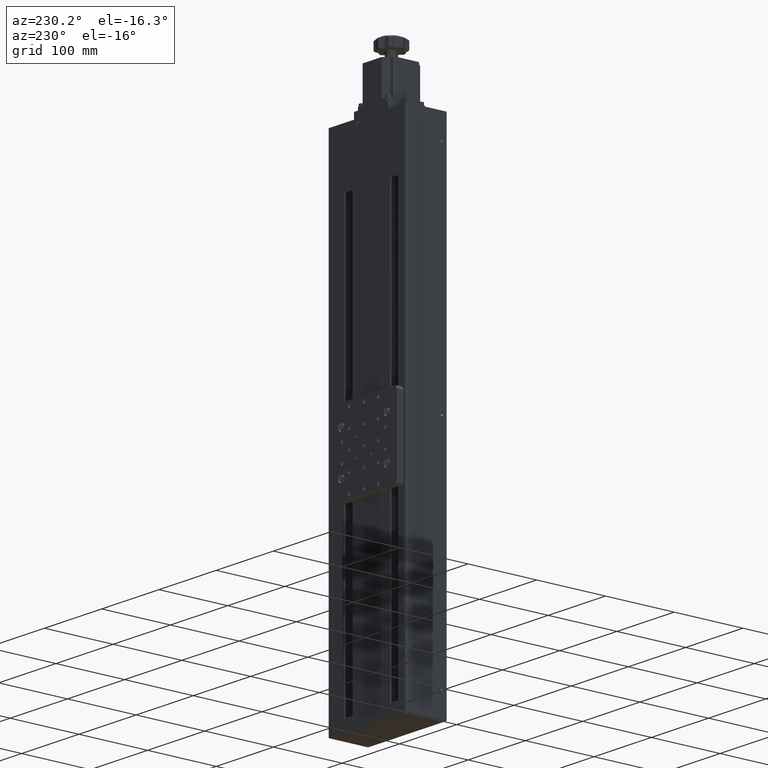
[diagram: clean part render]
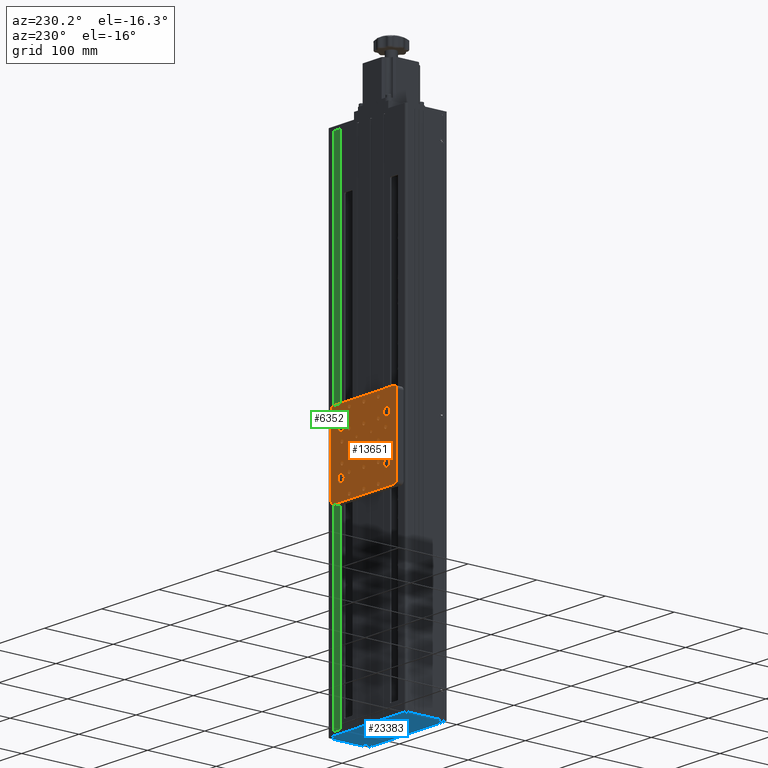
[diagram: same view with three faces highlighted in distinct colors, each labeled with its STEP entity id]
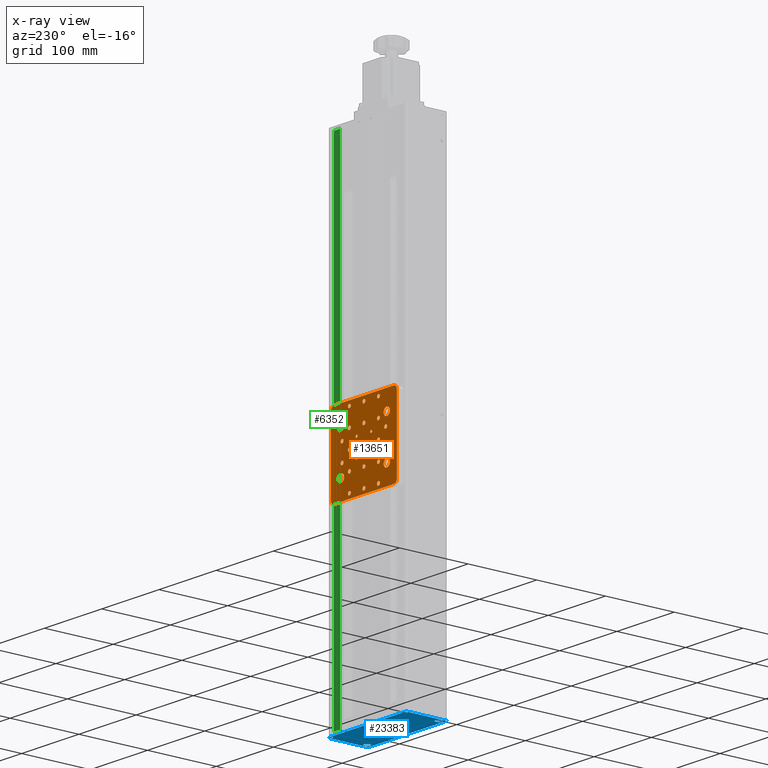
[diagram: x-ray of the same camera — body ghosted, the three highlighted faces saturated]
A machine part, auxiliary view with three faces highlighted in distinct colors.
The next image is the same camera in x-ray (body ghosted, the three faces saturated) — at least one of them is partly hidden behind the body in this view.
Their STEP definitions:

[orange] entity #13651 — the highlighted planar face has unit normal (0, -1, 0).
#51 = EDGE_CURVE ( 'NONE', #26415, #25536, #7859, .T. ) ;
#55 = CARTESIAN_POINT ( 'NONE',  ( -10.61080835603993200, 60.58234937935191800, -83.29999999999992600 ) ) ;
#67 = EDGE_CURVE ( 'NONE', #19683, #5195, #18828, .T. ) ;
#103 = DIRECTION ( 'NONE',  ( -1.581389297847712900E-017, 1.000000000000000000, -6.467343205884379600E-019 ) ) ;
#139 = FACE_BOUND ( 'NONE', #43143, .T. ) ;
#213 = ORIENTED_EDGE ( 'NONE', *, *, #38455, .F. ) ;
#354 = CARTESIAN_POINT ( 'NONE',  ( 14.78919164396006500, 60.58234937935191800, -4.547299999999948400 ) ) ;
#553 = DIRECTION ( 'NONE',  ( -1.581389297847712900E-017, 1.000000000000000000, -6.467343205884379600E-019 ) ) ;
#776 = CARTESIAN_POINT ( 'NONE',  ( 2.089191643960353100, 60.58234937935191800, -21.52719999999994400 ) ) ;
#839 = EDGE_LOOP ( 'NONE', ( #13242, #34448 ) ) ;
#1037 = CIRCLE ( 'NONE', #43157, 2.552699999999998000 ) ;
#1056 = AXIS2_PLACEMENT_3D ( 'NONE', #41377, #21415, #1492 ) ;
#1135 = EDGE_CURVE ( 'NONE', #11370, #30672, #33808, .T. ) ;
#1167 = FACE_BOUND ( 'NONE', #34742, .T. ) ;
#1185 = CARTESIAN_POINT ( 'NONE',  ( -36.01080835603993800, 60.58234937935191800, -85.85269999999992800 ) ) ;
#1337 = AXIS2_PLACEMENT_3D ( 'NONE', #30532, #10515, #33882 ) ;
#1375 = DIRECTION ( 'NONE',  ( 0.0000000000000000000, 0.0000000000000000000, 1.000000000000000000 ) ) ;
#1399 = DIRECTION ( 'NONE',  ( -1.581389297847712900E-017, 1.000000000000000000, -6.467343205884379600E-019 ) ) ;
#1406 = CARTESIAN_POINT ( 'NONE',  ( 14.78919164396006500, 60.58234937935191800, -9.652699999999944300 ) ) ;
#1419 = VERTEX_POINT ( 'NONE', #21286 ) ;
#1476 = AXIS2_PLACEMENT_3D ( 'NONE', #5542, #28843, #8872 ) ;
#1492 = DIRECTION ( 'NONE',  ( 0.0000000000000000000, 0.0000000000000000000, 1.000000000000000000 ) ) ;
#1504 = CARTESIAN_POINT ( 'NONE',  ( -36.01080835603993800, 60.58234937935191800, -32.49999999999993600 ) ) ;
#1570 = CARTESIAN_POINT ( 'NONE',  ( 46.88919164396007500, 60.58234937935192500, 25.00000000000005700 ) ) ;
#1628 = EDGE_CURVE ( 'NONE', #39416, #18270, #11264, .T. ) ;
#1629 = EDGE_LOOP ( 'NONE', ( #41685, #39555 ) ) ;
#1643 = AXIS2_PLACEMENT_3D ( 'NONE', #21963, #2003, #25313 ) ;
#1697 = AXIS2_PLACEMENT_3D ( 'NONE', #33067, #13108, #36413 ) ;
#1700 = EDGE_CURVE ( 'NONE', #7491, #20267, #39439, .T. ) ;
#1766 = CARTESIAN_POINT ( 'NONE',  ( 46.68919164396007200, 60.58234937935192500, -32.59999999999994500 ) ) ;
#1805 = CIRCLE ( 'NONE', #32831, 2.552699999999998000 ) ;
#1819 = AXIS2_PLACEMENT_3D ( 'NONE', #35853, #15893, #39198 ) ;
#1936 = CIRCLE ( 'NONE', #24909, 5.000000000000004400 ) ;
#1960 = AXIS2_PLACEMENT_3D ( 'NONE', #41240, #21303, #1375 ) ;
#2003 = DIRECTION ( 'NONE',  ( -1.581389297847712900E-017, 1.000000000000000000, -6.467343205884379600E-019 ) ) ;
#2142 = EDGE_CURVE ( 'NONE', #28087, #39634, #1805, .T. ) ;
#2200 = FACE_BOUND ( 'NONE', #21982, .T. ) ;
#2299 = VERTEX_POINT ( 'NONE', #38454 ) ;
#2390 = DIRECTION ( 'NONE',  ( 0.0000000000000000000, 0.0000000000000000000, 1.000000000000000000 ) ) ;
#2418 = DIRECTION ( 'NONE',  ( 0.0000000000000000000, 0.0000000000000000000, 1.000000000000000000 ) ) ;
#2447 = CARTESIAN_POINT ( 'NONE',  ( -36.01080835603993800, 60.58234937935191800, -32.49999999999993600 ) ) ;
#2569 = DIRECTION ( 'NONE',  ( 0.0000000000000000000, 0.0000000000000000000, 1.000000000000000000 ) ) ;
#2615 = EDGE_CURVE ( 'NONE', #26834, #2955, #42030, .T. ) ;
#2685 = AXIS2_PLACEMENT_3D ( 'NONE', #2447, #25766, #5787 ) ;
#2807 = AXIS2_PLACEMENT_3D ( 'NONE', #11852, #35167, #15190 ) ;
#2904 = EDGE_CURVE ( 'NONE', #26885, #34759, #27393, .T. ) ;
#2955 = VERTEX_POINT ( 'NONE', #35901 ) ;
#3083 = DIRECTION ( 'NONE',  ( -1.581389297847712900E-017, 1.000000000000000000, -6.467343205884379600E-019 ) ) ;
#3084 = CARTESIAN_POINT ( 'NONE',  ( -36.01080835603993800, 60.58234937935191800, 18.30000000000005800 ) ) ;
#3198 = EDGE_CURVE ( 'NONE', #26777, #33761, #27401, .T. ) ;
#3220 = CARTESIAN_POINT ( 'NONE',  ( -68.11080835603995400, 60.58234937935191800, -84.99999999999997200 ) ) ;
#3256 = FACE_OUTER_BOUND ( 'NONE', #27239, .T. ) ;
#3265 = ORIENTED_EDGE ( 'NONE', *, *, #20494, .F. ) ;
#3269 = CIRCLE ( 'NONE', #23449, 2.552699999999998000 ) ;
#3284 = EDGE_CURVE ( 'NONE', #15262, #13300, #6530, .T. ) ;
#3302 = DIRECTION ( 'NONE',  ( -1.581389297847712900E-017, 1.000000000000000000, -6.467343205884379600E-019 ) ) ;
#3390 = DIRECTION ( 'NONE',  ( 0.0000000000000000000, 0.0000000000000000000, 1.000000000000000000 ) ) ;
#3394 = VERTEX_POINT ( 'NONE', #30243 ) ;
#3603 = EDGE_CURVE ( 'NONE', #40510, #33751, #8042, .T. ) ;
#3661 = AXIS2_PLACEMENT_3D ( 'NONE', #35517, #15538, #38867 ) ;
#3679 = CARTESIAN_POINT ( 'NONE',  ( 14.78919164396006500, 60.58234937935191800, 15.74730000000006100 ) ) ;
#3749 = CARTESIAN_POINT ( 'NONE',  ( -10.61080835603993800, 60.58234937935191800, 18.30000000000005800 ) ) ;
#3802 = ORIENTED_EDGE ( 'NONE', *, *, #2904, .F. ) ;
#3964 = CARTESIAN_POINT ( 'NONE',  ( 46.68919164396007200, 60.58234937935192500, -32.39999999999994200 ) ) ;
#3981 = CARTESIAN_POINT ( 'NONE',  ( 14.78919164396006500, 60.58234937935191800, -29.94729999999994200 ) ) ;
#4017 = CARTESIAN_POINT ( 'NONE',  ( 14.78919164396006500, 60.58234937935191800, 18.30000000000005800 ) ) ;
#4122 = CARTESIAN_POINT ( 'NONE',  ( -50.61080835603993900, 60.58234937935191800, -67.99999999999994300 ) ) ;
#4163 = AXIS2_PLACEMENT_3D ( 'NONE', #6134, #29452, #9480 ) ;
#4288 = FACE_BOUND ( 'NONE', #32201, .T. ) ;
#4627 = EDGE_LOOP ( 'NONE', ( #25703, #22963 ) ) ;
#4634 = EDGE_LOOP ( 'NONE', ( #5228, #28096 ) ) ;
#4852 = DIRECTION ( 'NONE',  ( 0.0000000000000000000, 0.0000000000000000000, 1.000000000000000000 ) ) ;
#4921 = CARTESIAN_POINT ( 'NONE',  ( -68.11080835603995400, 60.58234937935191800, 20.00000000000006000 ) ) ;
#4926 = DIRECTION ( 'NONE',  ( 2.775557561562891400E-017, -6.467343205885191400E-019, -1.000000000000000000 ) ) ;
#4941 = CARTESIAN_POINT ( 'NONE',  ( -48.71080835603996900, 60.58234937935192500, -45.19999999999994600 ) ) ;
#4964 = EDGE_CURVE ( 'NONE', #22587, #9603, #11441, .T. ) ;
#4966 = AXIS2_PLACEMENT_3D ( 'NONE', #1504, #24798, #4852 ) ;
#4999 = EDGE_LOOP ( 'NONE', ( #40388, #8730 ) ) ;
#5047 = ORIENTED_EDGE ( 'NONE', *, *, #6774, .F. ) ;
#5195 = VERTEX_POINT ( 'NONE', #1185 ) ;
#5202 = CARTESIAN_POINT ( 'NONE',  ( 46.68919164396007200, 60.58234937935192500, -32.39999999999994200 ) ) ;
#5203 = CIRCLE ( 'NONE', #3661, 2.552699999999998000 ) ;
#5228 = ORIENTED_EDGE ( 'NONE', *, *, #11070, .F. ) ;
#5437 = VERTEX_POINT ( 'NONE', #22695 ) ;
#5439 = EDGE_LOOP ( 'NONE', ( #34160, #6688 ) ) ;
#5478 = ORIENTED_EDGE ( 'NONE', *, *, #21488, .F. ) ;
#5489 = VERTEX_POINT ( 'NONE', #42815 ) ;
#5499 = DIRECTION ( 'NONE',  ( -1.581389297847712900E-017, 1.000000000000000000, -6.467343205884379600E-019 ) ) ;
#5542 = CARTESIAN_POINT ( 'NONE',  ( -10.61080835603993600, 60.58234937935191800, -57.89999999999993500 ) ) ;
#5694 = AXIS2_PLACEMENT_3D ( 'NONE', #10209, #33542, #13566 ) ;
#5787 = DIRECTION ( 'NONE',  ( 0.0000000000000000000, 0.0000000000000000000, 1.000000000000000000 ) ) ;
#5796 = EDGE_CURVE ( 'NONE', #35192, #16529, #18793, .T. ) ;
#5887 = CARTESIAN_POINT ( 'NONE',  ( -23.31080835603992800, 60.58234937935191800, -45.19999999999994600 ) ) ;
#5909 = CARTESIAN_POINT ( 'NONE',  ( 29.38919164396007500, 60.58234937935191800, -2.499999999999943200 ) ) ;
#6134 = CARTESIAN_POINT ( 'NONE',  ( 27.48919164396009100, 60.58234937935192500, -19.79999999999994400 ) ) ;
#6156 = EDGE_CURVE ( 'NONE', #31495, #15790, #1037, .T. ) ;
#6196 = CARTESIAN_POINT ( 'NONE',  ( 46.88919164396007500, 60.58234937935192500, 25.00000000000005700 ) ) ;
#6226 = ORIENTED_EDGE ( 'NONE', *, *, #8471, .F. ) ;
#6247 = CARTESIAN_POINT ( 'NONE',  ( -10.61080835603993400, 60.58234937935191800, -9.652699999999944300 ) ) ;
#6258 = CARTESIAN_POINT ( 'NONE',  ( 14.78919164396006500, 60.58234937935191800, -85.85269999999992800 ) ) ;
#6294 = CARTESIAN_POINT ( 'NONE',  ( -36.01080835603993800, 60.58234937935191800, -35.05269999999993800 ) ) ;
#6299 = EDGE_LOOP ( 'NONE', ( #213, #40737 ) ) ;
#6367 = CIRCLE ( 'NONE', #32733, 1.727199999999998100 ) ;
#6402 = DIRECTION ( 'NONE',  ( 0.0000000000000000000, 0.0000000000000000000, 1.000000000000000000 ) ) ;
#6526 = ORIENTED_EDGE ( 'NONE', *, *, #37862, .T. ) ;
#6530 = LINE ( 'NONE', #6196, #14313 ) ;
#6688 = ORIENTED_EDGE ( 'NONE', *, *, #38044, .F. ) ;
#6774 = EDGE_CURVE ( 'NONE', #22621, #38273, #21738, .T. ) ;
#6839 = AXIS2_PLACEMENT_3D ( 'NONE', #25455, #5499, #28792 ) ;
#6884 = CARTESIAN_POINT ( 'NONE',  ( 41.88919164396007500, 60.58234937935192500, 25.00000000000005700 ) ) ;
#6889 = CARTESIAN_POINT ( 'NONE',  ( 41.88919164396007500, 60.58234937935191800, 20.00000000000006000 ) ) ;
#7069 = CIRCLE ( 'NONE', #16970, 2.552699999999987800 ) ;
#7111 = DIRECTION ( 'NONE',  ( 0.0000000000000000000, 0.0000000000000000000, 1.000000000000000000 ) ) ;
#7214 = ORIENTED_EDGE ( 'NONE', *, *, #26596, .F. ) ;
#7259 = AXIS2_PLACEMENT_3D ( 'NONE', #14593, #37938, #17949 ) ;
#7266 = AXIS2_PLACEMENT_3D ( 'NONE', #33881, #13879, #37205 ) ;
#7322 = CIRCLE ( 'NONE', #7259, 1.727199999999998100 ) ;
#7350 = EDGE_CURVE ( 'NONE', #38273, #22621, #24214, .T. ) ;
#7372 = CARTESIAN_POINT ( 'NONE',  ( -36.01080835603993800, 60.58234937935191800, -60.45269999999993600 ) ) ;
#7375 = DIRECTION ( 'NONE',  ( 0.0000000000000000000, 0.0000000000000000000, 1.000000000000000000 ) ) ;
#7383 = DIRECTION ( 'NONE',  ( -1.581389297847712900E-017, 1.000000000000000000, -6.467343205884379600E-019 ) ) ;
#7435 = CARTESIAN_POINT ( 'NONE',  ( -10.61080835603993600, 60.58234937935191800, -57.89999999999993500 ) ) ;
#7468 = CARTESIAN_POINT ( 'NONE',  ( 2.089191643960063100, 60.58234937935191800, -43.47279999999995000 ) ) ;
#7484 = CARTESIAN_POINT ( 'NONE',  ( 41.88919164396007500, 60.58234937935191800, -84.99999999999997200 ) ) ;
#7491 = VERTEX_POINT ( 'NONE', #15386 ) ;
#7651 = VERTEX_POINT ( 'NONE', #39283 ) ;
#7769 = DIRECTION ( 'NONE',  ( -1.581389297847712900E-017, 1.000000000000000000, -6.467343205884379600E-019 ) ) ;
#7859 = LINE ( 'NONE', #20779, #33391 ) ;
#7876 = EDGE_CURVE ( 'NONE', #21428, #39893, #37715, .T. ) ;
#7937 = FACE_BOUND ( 'NONE', #4999, .T. ) ;
#7977 = LINE ( 'NONE', #34830, #42350 ) ;
#8042 = CIRCLE ( 'NONE', #1960, 1.727199999999998100 ) ;
#8287 = DIRECTION ( 'NONE',  ( 0.0000000000000000000, 0.0000000000000000000, 1.000000000000000000 ) ) ;
#8339 = CARTESIAN_POINT ( 'NONE',  ( -10.61080835603993600, 60.58234937935191800, -32.49999999999993600 ) ) ;
#8420 = CARTESIAN_POINT ( 'NONE',  ( -63.11080835603995400, 60.58234937935191800, 20.00000000000006000 ) ) ;
#8471 = EDGE_CURVE ( 'NONE', #1419, #33670, #18294, .T. ) ;
#8487 = AXIS2_PLACEMENT_3D ( 'NONE', #15690, #39013, #19025 ) ;
#8494 = CIRCLE ( 'NONE', #8628, 2.552699999999998000 ) ;
#8529 = ORIENTED_EDGE ( 'NONE', *, *, #10389, .F. ) ;
#8628 = AXIS2_PLACEMENT_3D ( 'NONE', #42273, #22336, #2390 ) ;
#8649 = AXIS2_PLACEMENT_3D ( 'NONE', #14994, #38339, #18334 ) ;
#8684 = EDGE_LOOP ( 'NONE', ( #24140, #32781 ) ) ;
#8730 = ORIENTED_EDGE ( 'NONE', *, *, #32320, .F. ) ;
#8841 = ORIENTED_EDGE ( 'NONE', *, *, #3603, .F. ) ;
#8862 = VERTEX_POINT ( 'NONE', #16626 ) ;
#8872 = DIRECTION ( 'NONE',  ( 0.0000000000000000000, 0.0000000000000000000, 1.000000000000000000 ) ) ;
#8959 = FACE_BOUND ( 'NONE', #1629, .T. ) ;
#8998 = AXIS2_PLACEMENT_3D ( 'NONE', #23226, #3302, #26625 ) ;
#9041 = AXIS2_PLACEMENT_3D ( 'NONE', #35131, #15157, #38499 ) ;
#9053 = EDGE_LOOP ( 'NONE', ( #8529, #42228 ) ) ;
#9235 = DIRECTION ( 'NONE',  ( 0.0000000000000000000, 0.0000000000000000000, 1.000000000000000000 ) ) ;
#9259 = DIRECTION ( 'NONE',  ( 0.0000000000000000000, 0.0000000000000000000, 1.000000000000000000 ) ) ;
#9362 = VERTEX_POINT ( 'NONE', #6247 ) ;
#9480 = DIRECTION ( 'NONE',  ( 0.0000000000000000000, 0.0000000000000000000, 1.000000000000000000 ) ) ;
#9545 = ORIENTED_EDGE ( 'NONE', *, *, #15976, .T. ) ;
#9595 = ORIENTED_EDGE ( 'NONE', *, *, #25267, .F. ) ;
#9603 = VERTEX_POINT ( 'NONE', #38110 ) ;
#9683 = EDGE_LOOP ( 'NONE', ( #40803, #29757 ) ) ;
#9732 = ORIENTED_EDGE ( 'NONE', *, *, #34808, .F. ) ;
#9788 = EDGE_CURVE ( 'NONE', #23721, #9362, #20862, .T. ) ;
#9973 = CARTESIAN_POINT ( 'NONE',  ( 29.38919164396007500, 60.58234937935191800, -2.499999999999943200 ) ) ;
#10005 = FACE_BOUND ( 'NONE', #12679, .T. ) ;
#10022 = ORIENTED_EDGE ( 'NONE', *, *, #40535, .F. ) ;
#10090 = DIRECTION ( 'NONE',  ( -1.581389297847712900E-017, 1.000000000000000000, -6.467343205884379600E-019 ) ) ;
#10096 = ORIENTED_EDGE ( 'NONE', *, *, #14384, .F. ) ;
#10209 = CARTESIAN_POINT ( 'NONE',  ( -48.71080835603996900, 60.58234937935192500, -19.79999999999995100 ) ) ;
#10215 = DIRECTION ( 'NONE',  ( 0.0000000000000000000, 0.0000000000000000000, -1.000000000000000000 ) ) ;
#10364 = CARTESIAN_POINT ( 'NONE',  ( -10.61080835603993600, 60.58234937935191800, -60.45269999999993600 ) ) ;
#10389 = EDGE_CURVE ( 'NONE', #30112, #39764, #21789, .T. ) ;
#10397 = ORIENTED_EDGE ( 'NONE', *, *, #23029, .F. ) ;
#10400 = ORIENTED_EDGE ( 'NONE', *, *, #35397, .T. ) ;
#10515 = DIRECTION ( 'NONE',  ( -1.581389297847712900E-017, 1.000000000000000000, -6.467343205884379600E-019 ) ) ;
#10559 = CIRCLE ( 'NONE', #28806, 5.000000000000004400 ) ;
#10755 = DIRECTION ( 'NONE',  ( 0.0000000000000000000, 0.0000000000000000000, 1.000000000000000000 ) ) ;
#10799 = DIRECTION ( 'NONE',  ( 0.0000000000000000000, 0.0000000000000000000, -1.000000000000000000 ) ) ;
#10953 = VERTEX_POINT ( 'NONE', #38431 ) ;
#11016 = VECTOR ( 'NONE', #17203, 1000.000000000000000 ) ;
#11034 = FACE_BOUND ( 'NONE', #4627, .T. ) ;
#11070 = EDGE_CURVE ( 'NONE', #20267, #7491, #32616, .T. ) ;
#11139 = CIRCLE ( 'NONE', #2807, 5.500000000000005300 ) ;
#11159 = CARTESIAN_POINT ( 'NONE',  ( -36.01080835603993800, 60.58234937935191800, -57.89999999999993500 ) ) ;
#11226 = EDGE_CURVE ( 'NONE', #37258, #7651, #30004, .T. ) ;
#11264 = CIRCLE ( 'NONE', #1819, 5.499999999999998200 ) ;
#11327 = VERTEX_POINT ( 'NONE', #29958 ) ;
#11343 = CIRCLE ( 'NONE', #39735, 5.000000000000000900 ) ;
#11370 = VERTEX_POINT ( 'NONE', #7372 ) ;
#11441 = CIRCLE ( 'NONE', #20715, 2.552699999999990900 ) ;
#11477 = VECTOR ( 'NONE', #13684, 1000.000000000000000 ) ;
#11491 = AXIS2_PLACEMENT_3D ( 'NONE', #19036, #42344, #15697 ) ;
#11502 = EDGE_LOOP ( 'NONE', ( #12425, #5478 ) ) ;
#11666 = AXIS2_PLACEMENT_3D ( 'NONE', #38786, #18795, #42106 ) ;
#11673 = DIRECTION ( 'NONE',  ( 0.0000000000000000000, 0.0000000000000000000, 1.000000000000000000 ) ) ;
#11754 = DIRECTION ( 'NONE',  ( 0.0000000000000000000, 0.0000000000000000000, -1.000000000000000000 ) ) ;
#11760 = CARTESIAN_POINT ( 'NONE',  ( -10.61080835603993600, 60.58234937935191800, -35.05269999999993800 ) ) ;
#11852 = CARTESIAN_POINT ( 'NONE',  ( 29.38919164396008900, 60.58234937935191800, -62.49999999999994300 ) ) ;
#11885 = EDGE_LOOP ( 'NONE', ( #21299, #8841 ) ) ;
#11932 = VERTEX_POINT ( 'NONE', #13556 ) ;
#11949 = DIRECTION ( 'NONE',  ( -1.581389297847712900E-017, 1.000000000000000000, -6.467343205884379600E-019 ) ) ;
#12082 = FACE_BOUND ( 'NONE', #30113, .T. ) ;
#12096 = ORIENTED_EDGE ( 'NONE', *, *, #2142, .F. ) ;
#12237 = VERTEX_POINT ( 'NONE', #6258 ) ;
#12425 = ORIENTED_EDGE ( 'NONE', *, *, #19161, .F. ) ;
#12593 = CIRCLE ( 'NONE', #4966, 2.552699999999998000 ) ;
#12638 = DIRECTION ( 'NONE',  ( -1.581389297847712900E-017, 1.000000000000000000, -6.467343205884379600E-019 ) ) ;
#12679 = EDGE_LOOP ( 'NONE', ( #17047, #9595 ) ) ;
#12684 = AXIS2_PLACEMENT_3D ( 'NONE', #9973, #33286, #13315 ) ;
#12816 = CIRCLE ( 'NONE', #38204, 5.000000000000000900 ) ;
#12907 = EDGE_CURVE ( 'NONE', #31116, #22867, #7069, .T. ) ;
#12925 = CARTESIAN_POINT ( 'NONE',  ( 27.48919164396009100, 60.58234937935192500, -22.35269999999993100 ) ) ;
#12970 = CARTESIAN_POINT ( 'NONE',  ( -68.11080835603995400, 60.58234937935191800, 25.00000000000006400 ) ) ;
#13029 = CARTESIAN_POINT ( 'NONE',  ( -23.31080835603992800, 60.58234937935191800, -46.92719999999994900 ) ) ;
#13108 = DIRECTION ( 'NONE',  ( -1.581389297847712900E-017, 1.000000000000000000, -6.467343205884379600E-019 ) ) ;
#13137 = CARTESIAN_POINT ( 'NONE',  ( 14.78919164396006500, 60.58234937935191800, -80.74729999999993900 ) ) ;
#13141 = FACE_BOUND ( 'NONE', #8684, .T. ) ;
#13242 = ORIENTED_EDGE ( 'NONE', *, *, #3198, .F. ) ;
#13300 = VERTEX_POINT ( 'NONE', #22846 ) ;
#13315 = DIRECTION ( 'NONE',  ( 0.0000000000000000000, 0.0000000000000000000, 1.000000000000000000 ) ) ;
#13410 = ORIENTED_EDGE ( 'NONE', *, *, #29529, .F. ) ;
#13556 = CARTESIAN_POINT ( 'NONE',  ( -10.61080835603993600, 60.58234937935191800, -29.94729999999994200 ) ) ;
#13566 = DIRECTION ( 'NONE',  ( 0.0000000000000000000, 0.0000000000000000000, 1.000000000000000000 ) ) ;
#13651 = ADVANCED_FACE ( 'NONE', ( #14161, #39751, #4288, #13141, #38704, #29845, #20958, #12082, #3256, #37631, #28779, #19921, #11034, #2200, #36587, #27739, #18849, #10005, #1167, #35564, #26715, #17800, #8959, #139, #34530, #25664, #16775, #7937 ), #31427, .F. ) ;
#13684 = DIRECTION ( 'NONE',  ( -1.000000000000000000, -1.581389297847712000E-017, -2.775557561562891400E-017 ) ) ;
#13879 = DIRECTION ( 'NONE',  ( -1.581389297847712900E-017, 1.000000000000000000, -6.467343205884379600E-019 ) ) ;
#13971 = ORIENTED_EDGE ( 'NONE', *, *, #12907, .F. ) ;
#14049 = CIRCLE ( 'NONE', #2685, 2.552699999999998000 ) ;
#14161 = FACE_BOUND ( 'NONE', #9053, .T. ) ;
#14170 = EDGE_CURVE ( 'NONE', #33761, #26777, #7322, .T. ) ;
#14313 = VECTOR ( 'NONE', #29506, 1000.000000000000000 ) ;
#14370 = CIRCLE ( 'NONE', #28145, 2.552699999999998000 ) ;
#14384 = EDGE_CURVE ( 'NONE', #2955, #26834, #8494, .T. ) ;
#14493 = DIRECTION ( 'NONE',  ( -1.581389297847712900E-017, 1.000000000000000000, -6.467343205884379600E-019 ) ) ;
#14494 = DIRECTION ( 'NONE',  ( 0.0000000000000000000, 0.0000000000000000000, 1.000000000000000000 ) ) ;
#14509 = DIRECTION ( 'NONE',  ( -1.581389297847712900E-017, 1.000000000000000000, -6.467343205884379600E-019 ) ) ;
#14570 = CARTESIAN_POINT ( 'NONE',  ( -10.61080835603993400, 60.58234937935191800, -4.547299999999948400 ) ) ;
#14571 = AXIS2_PLACEMENT_3D ( 'NONE', #17287, #40603, #20641 ) ;
#14593 = CARTESIAN_POINT ( 'NONE',  ( 2.089191643960352600, 60.58234937935191800, -19.79999999999994700 ) ) ;
#14630 = ORIENTED_EDGE ( 'NONE', *, *, #30684, .F. ) ;
#14661 = EDGE_CURVE ( 'NONE', #5437, #30591, #28765, .T. ) ;
#14680 = DIRECTION ( 'NONE',  ( -1.581389297847712900E-017, 1.000000000000000000, -6.467343205884379600E-019 ) ) ;
#14994 = CARTESIAN_POINT ( 'NONE',  ( 14.78919164396006500, 60.58234937935191800, -32.49999999999993600 ) ) ;
#15157 = DIRECTION ( 'NONE',  ( -1.581389297847712900E-017, 1.000000000000000000, -6.467343205884379600E-019 ) ) ;
#15168 = DIRECTION ( 'NONE',  ( -1.581389297847712900E-017, 1.000000000000000000, -6.467343205884379600E-019 ) ) ;
#15190 = DIRECTION ( 'NONE',  ( 0.0000000000000000000, 0.0000000000000000000, 1.000000000000000000 ) ) ;
#15262 = VERTEX_POINT ( 'NONE', #34524 ) ;
#15300 = CARTESIAN_POINT ( 'NONE',  ( -63.11080835603992500, 60.58234937935191800, 25.00000000000006400 ) ) ;
#15351 = EDGE_CURVE ( 'NONE', #2299, #5489, #5203, .T. ) ;
#15386 = CARTESIAN_POINT ( 'NONE',  ( -36.01080835603993800, 60.58234937935191800, 15.74730000000006100 ) ) ;
#15421 = AXIS2_PLACEMENT_3D ( 'NONE', #11159, #34506, #14494 ) ;
#15458 = CARTESIAN_POINT ( 'NONE',  ( -36.01080835603993800, 60.58234937935191800, -80.74729999999993900 ) ) ;
#15485 = CARTESIAN_POINT ( 'NONE',  ( -48.71080835603996900, 60.58234937935192500, -17.24729999999996400 ) ) ;
#15538 = DIRECTION ( 'NONE',  ( -1.581389297847712900E-017, 1.000000000000000000, -6.467343205884379600E-019 ) ) ;
#15588 = AXIS2_PLACEMENT_3D ( 'NONE', #35776, #15805, #39121 ) ;
#15690 = CARTESIAN_POINT ( 'NONE',  ( -23.31080835603992800, 60.58234937935191800, -19.79999999999995100 ) ) ;
#15697 = DIRECTION ( 'NONE',  ( 0.0000000000000000000, 0.0000000000000000000, 1.000000000000000000 ) ) ;
#15790 = VERTEX_POINT ( 'NONE', #354 ) ;
#15805 = DIRECTION ( 'NONE',  ( -1.581389297847712900E-017, 1.000000000000000000, -6.467343205884379600E-019 ) ) ;
#15893 = DIRECTION ( 'NONE',  ( -1.581389297847712900E-017, 1.000000000000000000, -6.467343205884379600E-019 ) ) ;
#15916 = VERTEX_POINT ( 'NONE', #40926 ) ;
#15976 = EDGE_CURVE ( 'NONE', #42191, #24028, #1936, .T. ) ;
#15998 = CIRCLE ( 'NONE', #36407, 5.500000000000005300 ) ;
#16447 = CARTESIAN_POINT ( 'NONE',  ( -23.31080835603992800, 60.58234937935191800, -43.47279999999995000 ) ) ;
#16449 = EDGE_CURVE ( 'NONE', #33670, #1419, #38321, .T. ) ;
#16529 = VERTEX_POINT ( 'NONE', #28220 ) ;
#16541 = EDGE_CURVE ( 'NONE', #30591, #38996, #34143, .T. ) ;
#16545 = DIRECTION ( 'NONE',  ( -1.581389297847712900E-017, 1.000000000000000000, -6.467343205884379600E-019 ) ) ;
#16620 = ORIENTED_EDGE ( 'NONE', *, *, #7876, .F. ) ;
#16626 = CARTESIAN_POINT ( 'NONE',  ( -48.71080835603996900, 60.58234937935192500, -42.64729999999995900 ) ) ;
#16658 = EDGE_CURVE ( 'NONE', #7651, #37258, #30479, .T. ) ;
#16719 = DIRECTION ( 'NONE',  ( -1.581389297847712900E-017, 1.000000000000000000, -6.467343205884379600E-019 ) ) ;
#16775 = FACE_BOUND ( 'NONE', #28383, .T. ) ;
#16966 = EDGE_LOOP ( 'NONE', ( #41859, #10397 ) ) ;
#16970 = AXIS2_PLACEMENT_3D ( 'NONE', #20457, #553, #23792 ) ;
#17047 = ORIENTED_EDGE ( 'NONE', *, *, #33127, .F. ) ;
#17051 = CARTESIAN_POINT ( 'NONE',  ( -50.61080835603989700, 60.58234937935191800, -7.999999999999916500 ) ) ;
#17115 = AXIS2_PLACEMENT_3D ( 'NONE', #34504, #14493, #37839 ) ;
#17168 = ORIENTED_EDGE ( 'NONE', *, *, #14661, .F. ) ;
#17203 = DIRECTION ( 'NONE',  ( -2.775557561562891400E-017, 6.467343205885191400E-019, 1.000000000000000000 ) ) ;
#17287 = CARTESIAN_POINT ( 'NONE',  ( 2.089191643960063100, 60.58234937935191800, -45.19999999999994600 ) ) ;
#17527 = EDGE_LOOP ( 'NONE', ( #23869, #13410 ) ) ;
#17800 = FACE_BOUND ( 'NONE', #23214, .T. ) ;
#17844 = DIRECTION ( 'NONE',  ( -1.581389297847712900E-017, 1.000000000000000000, -6.467343205884379600E-019 ) ) ;
#17894 = EDGE_LOOP ( 'NONE', ( #18323, #16620 ) ) ;
#17949 = DIRECTION ( 'NONE',  ( 0.0000000000000000000, 0.0000000000000000000, 1.000000000000000000 ) ) ;
#18037 = CARTESIAN_POINT ( 'NONE',  ( 14.78919164396006500, 60.58234937935191800, -55.34729999999994000 ) ) ;
#18190 = AXIS2_PLACEMENT_3D ( 'NONE', #31912, #11949, #35277 ) ;
#18199 = VERTEX_POINT ( 'NONE', #4921 ) ;
#18270 = VERTEX_POINT ( 'NONE', #17051 ) ;
#18294 = CIRCLE ( 'NONE', #38236, 2.552699999999998000 ) ;
#18323 = ORIENTED_EDGE ( 'NONE', *, *, #30699, .F. ) ;
#18334 = DIRECTION ( 'NONE',  ( 0.0000000000000000000, 0.0000000000000000000, 1.000000000000000000 ) ) ;
#18361 = AXIS2_PLACEMENT_3D ( 'NONE', #27316, #7383, #30698 ) ;
#18426 = DIRECTION ( 'NONE',  ( 1.000000000000000000, 1.581389297847711100E-017, 2.775557561562891400E-017 ) ) ;
#18512 = CARTESIAN_POINT ( 'NONE',  ( 14.78919164396006500, 60.58234937935191800, -32.49999999999993600 ) ) ;
#18793 = CIRCLE ( 'NONE', #8487, 1.727199999999998100 ) ;
#18795 = DIRECTION ( 'NONE',  ( -1.581389297847712900E-017, 1.000000000000000000, -6.467343205884379600E-019 ) ) ;
#18828 = CIRCLE ( 'NONE', #11491, 2.552699999999990900 ) ;
#18849 = FACE_BOUND ( 'NONE', #11885, .T. ) ;
#18983 = CARTESIAN_POINT ( 'NONE',  ( -10.61080835603993200, 60.58234937935191800, -80.74729999999993900 ) ) ;
#19025 = DIRECTION ( 'NONE',  ( 0.0000000000000000000, 0.0000000000000000000, 1.000000000000000000 ) ) ;
#19036 = CARTESIAN_POINT ( 'NONE',  ( -36.01080835603993800, 60.58234937935191800, -83.29999999999992600 ) ) ;
#19083 = CARTESIAN_POINT ( 'NONE',  ( 46.68919164396007200, 60.58234937935192500, -32.39999999999994200 ) ) ;
#19161 = EDGE_CURVE ( 'NONE', #35583, #42068, #34740, .T. ) ;
#19226 = AXIS2_PLACEMENT_3D ( 'NONE', #35143, #15168, #38505 ) ;
#19279 = CARTESIAN_POINT ( 'NONE',  ( 27.48919164396009100, 60.58234937935192500, -47.75269999999992600 ) ) ;
#19399 = EDGE_CURVE ( 'NONE', #11932, #39585, #21634, .T. ) ;
#19527 = CARTESIAN_POINT ( 'NONE',  ( -36.01080835603993800, 60.58234937935191800, -55.34729999999994000 ) ) ;
#19683 = VERTEX_POINT ( 'NONE', #15458 ) ;
#19686 = VECTOR ( 'NONE', #28434, 1000.000000000000000 ) ;
#19921 = FACE_BOUND ( 'NONE', #9683, .T. ) ;
#20028 = CARTESIAN_POINT ( 'NONE',  ( -36.01080835603993800, 60.58234937935191800, -7.099999999999946400 ) ) ;
#20267 = VERTEX_POINT ( 'NONE', #23255 ) ;
#20351 = LINE ( 'NONE', #33686, #11477 ) ;
#20457 = CARTESIAN_POINT ( 'NONE',  ( 27.48919164396009100, 60.58234937935192500, -19.79999999999994400 ) ) ;
#20494 = EDGE_CURVE ( 'NONE', #9603, #22587, #25586, .T. ) ;
#20641 = DIRECTION ( 'NONE',  ( 0.0000000000000000000, 0.0000000000000000000, 1.000000000000000000 ) ) ;
#20715 = AXIS2_PLACEMENT_3D ( 'NONE', #55, #23305, #3390 ) ;
#20730 = LINE ( 'NONE', #1766, #19686 ) ;
#20779 = CARTESIAN_POINT ( 'NONE',  ( 46.88919164396007500, 60.58234937935192500, 25.00000000000005700 ) ) ;
#20862 = CIRCLE ( 'NONE', #8998, 2.552699999999998000 ) ;
#20871 = AXIS2_PLACEMENT_3D ( 'NONE', #34520, #14509, #37851 ) ;
#20958 = FACE_BOUND ( 'NONE', #22960, .T. ) ;
#21230 = EDGE_CURVE ( 'NONE', #26415, #33265, #11343, .T. ) ;
#21269 = ORIENTED_EDGE ( 'NONE', *, *, #16449, .F. ) ;
#21286 = CARTESIAN_POINT ( 'NONE',  ( 14.78919164396006500, 60.58234937935191800, 20.85270000000005600 ) ) ;
#21299 = ORIENTED_EDGE ( 'NONE', *, *, #36545, .F. ) ;
#21303 = DIRECTION ( 'NONE',  ( -1.581389297847712900E-017, 1.000000000000000000, -6.467343205884379600E-019 ) ) ;
#21333 = CARTESIAN_POINT ( 'NONE',  ( 14.78919164396006500, 60.58234937935191800, -7.099999999999946400 ) ) ;
#21415 = DIRECTION ( 'NONE',  ( -1.581389297847712900E-017, 1.000000000000000000, -6.467343205884379600E-019 ) ) ;
#21428 = VERTEX_POINT ( 'NONE', #4122 ) ;
#21475 = ORIENTED_EDGE ( 'NONE', *, *, #7350, .F. ) ;
#21488 = EDGE_CURVE ( 'NONE', #42068, #35583, #33856, .T. ) ;
#21628 = CIRCLE ( 'NONE', #8649, 2.552699999999998000 ) ;
#21634 = CIRCLE ( 'NONE', #7266, 2.552699999999998000 ) ;
#21678 = CIRCLE ( 'NONE', #1643, 5.499999999999998200 ) ;
#21738 = CIRCLE ( 'NONE', #1056, 2.552699999999984200 ) ;
#21789 = CIRCLE ( 'NONE', #5694, 2.552699999999987800 ) ;
#21886 = DIRECTION ( 'NONE',  ( 0.0000000000000000000, 0.0000000000000000000, 1.000000000000000000 ) ) ;
#21921 = AXIS2_PLACEMENT_3D ( 'NONE', #3084, #26390, #6402 ) ;
#21931 = AXIS2_PLACEMENT_3D ( 'NONE', #42304, #22363, #2418 ) ;
#21963 = CARTESIAN_POINT ( 'NONE',  ( -50.61080835603989700, 60.58234937935191800, -2.499999999999919200 ) ) ;
#21982 = EDGE_LOOP ( 'NONE', ( #3802, #35918 ) ) ;
#21985 = LINE ( 'NONE', #12970, #30879 ) ;
#22336 = DIRECTION ( 'NONE',  ( -1.581389297847712900E-017, 1.000000000000000000, -6.467343205884379600E-019 ) ) ;
#22363 = DIRECTION ( 'NONE',  ( -1.581389297847712900E-017, 1.000000000000000000, -6.467343205884379600E-019 ) ) ;
#22491 = DIRECTION ( 'NONE',  ( -1.581389297847712900E-017, 1.000000000000000000, -6.467343205884379600E-019 ) ) ;
#22587 = VERTEX_POINT ( 'NONE', #18983 ) ;
#22621 = VERTEX_POINT ( 'NONE', #19279 ) ;
#22642 = ORIENTED_EDGE ( 'NONE', *, *, #16541, .F. ) ;
#22695 = CARTESIAN_POINT ( 'NONE',  ( 46.68919164396007200, 60.58234937935192500, -32.59999999999994500 ) ) ;
#22783 = EDGE_LOOP ( 'NONE', ( #10096, #39488 ) ) ;
#22846 = CARTESIAN_POINT ( 'NONE',  ( 46.88919164396007500, 60.58234937935192500, -84.99999999999997200 ) ) ;
#22867 = VERTEX_POINT ( 'NONE', #37339 ) ;
#22873 = EDGE_CURVE ( 'NONE', #13300, #3394, #10559, .T. ) ;
#22960 = EDGE_LOOP ( 'NONE', ( #26388, #41448 ) ) ;
#22963 = ORIENTED_EDGE ( 'NONE', *, *, #29995, .F. ) ;
#22991 = CARTESIAN_POINT ( 'NONE',  ( -48.71080835603996900, 60.58234937935192500, -45.19999999999994600 ) ) ;
#23029 = EDGE_CURVE ( 'NONE', #5195, #19683, #35047, .T. ) ;
#23214 = EDGE_LOOP ( 'NONE', ( #7214, #23700 ) ) ;
#23226 = CARTESIAN_POINT ( 'NONE',  ( -10.61080835603993400, 60.58234937935191800, -7.099999999999946400 ) ) ;
#23255 = CARTESIAN_POINT ( 'NONE',  ( -36.01080835603993800, 60.58234937935191800, 20.85270000000005600 ) ) ;
#23305 = DIRECTION ( 'NONE',  ( -1.581389297847712900E-017, 1.000000000000000000, -6.467343205884379600E-019 ) ) ;
#23350 = DIRECTION ( 'NONE',  ( 0.0000000000000000000, 0.0000000000000000000, 1.000000000000000000 ) ) ;
#23448 = CIRCLE ( 'NONE', #37629, 2.552699999999998000 ) ;
#23449 = AXIS2_PLACEMENT_3D ( 'NONE', #18512, #41804, #21886 ) ;
#23668 = EDGE_CURVE ( 'NONE', #36210, #10953, #15998, .T. ) ;
#23700 = ORIENTED_EDGE ( 'NONE', *, *, #30491, .F. ) ;
#23721 = VERTEX_POINT ( 'NONE', #14570 ) ;
#23730 = CIRCLE ( 'NONE', #11666, 2.552699999999987800 ) ;
#23792 = DIRECTION ( 'NONE',  ( 0.0000000000000000000, 0.0000000000000000000, 1.000000000000000000 ) ) ;
#23869 = ORIENTED_EDGE ( 'NONE', *, *, #1628, .F. ) ;
#24028 = VERTEX_POINT ( 'NONE', #3220 ) ;
#24140 = ORIENTED_EDGE ( 'NONE', *, *, #39630, .F. ) ;
#24214 = CIRCLE ( 'NONE', #20871, 2.552699999999984200 ) ;
#24274 = CARTESIAN_POINT ( 'NONE',  ( -50.61080835603989700, 60.58234937935191800, 3.000000000000079000 ) ) ;
#24408 = ORIENTED_EDGE ( 'NONE', *, *, #28996, .T. ) ;
#24677 = DIRECTION ( 'NONE',  ( 0.0000000000000000000, 0.0000000000000000000, 1.000000000000000000 ) ) ;
#24798 = DIRECTION ( 'NONE',  ( -1.581389297847712900E-017, 1.000000000000000000, -6.467343205884379600E-019 ) ) ;
#24881 = DIRECTION ( 'NONE',  ( 1.581389297847712900E-017, -1.000000000000000000, 6.467343205885196200E-019 ) ) ;
#24909 = AXIS2_PLACEMENT_3D ( 'NONE', #34700, #14680, #38021 ) ;
#25267 = EDGE_CURVE ( 'NONE', #12237, #41811, #35064, .T. ) ;
#25310 = CIRCLE ( 'NONE', #4163, 2.552699999999987800 ) ;
#25313 = DIRECTION ( 'NONE',  ( 0.0000000000000000000, 0.0000000000000000000, 1.000000000000000000 ) ) ;
#25392 = AXIS2_PLACEMENT_3D ( 'NONE', #36493, #16545, #39876 ) ;
#25433 = EDGE_CURVE ( 'NONE', #41775, #11327, #12593, .T. ) ;
#25455 = CARTESIAN_POINT ( 'NONE',  ( -36.01080835603993800, 60.58234937935191800, 18.30000000000005800 ) ) ;
#25536 = VERTEX_POINT ( 'NONE', #15300 ) ;
#25586 = CIRCLE ( 'NONE', #32700, 2.552699999999990900 ) ;
#25664 = FACE_BOUND ( 'NONE', #42358, .T. ) ;
#25703 = ORIENTED_EDGE ( 'NONE', *, *, #23668, .F. ) ;
#25766 = DIRECTION ( 'NONE',  ( -1.581389297847712900E-017, 1.000000000000000000, -6.467343205884379600E-019 ) ) ;
#25846 = ORIENTED_EDGE ( 'NONE', *, *, #21230, .T. ) ;
#26388 = ORIENTED_EDGE ( 'NONE', *, *, #9788, .F. ) ;
#26389 = DIRECTION ( 'NONE',  ( 0.0000000000000000000, 0.0000000000000000000, 1.000000000000000000 ) ) ;
#26390 = DIRECTION ( 'NONE',  ( -1.581389297847712900E-017, 1.000000000000000000, -6.467343205884379600E-019 ) ) ;
#26415 = VERTEX_POINT ( 'NONE', #6884 ) ;
#26578 = ORIENTED_EDGE ( 'NONE', *, *, #51, .F. ) ;
#26596 = EDGE_CURVE ( 'NONE', #28847, #15916, #21628, .T. ) ;
#26625 = DIRECTION ( 'NONE',  ( 0.0000000000000000000, 0.0000000000000000000, 1.000000000000000000 ) ) ;
#26629 = CIRCLE ( 'NONE', #40088, 2.552699999999990900 ) ;
#26715 = FACE_BOUND ( 'NONE', #11502, .T. ) ;
#26777 = VERTEX_POINT ( 'NONE', #32480 ) ;
#26834 = VERTEX_POINT ( 'NONE', #32773 ) ;
#26885 = VERTEX_POINT ( 'NONE', #16447 ) ;
#27046 = DIRECTION ( 'NONE',  ( -1.581389297847712900E-017, 1.000000000000000000, -6.467343205884379600E-019 ) ) ;
#27072 = CARTESIAN_POINT ( 'NONE',  ( 27.48919164396009100, 60.58234937935192500, -42.64729999999995900 ) ) ;
#27239 = EDGE_LOOP ( 'NONE', ( #17168, #24408, #29614, #32502, #10400, #9545, #14630, #33527, #26578, #25846, #6526, #22642 ) ) ;
#27305 = DIRECTION ( 'NONE',  ( -1.581389297847712900E-017, 1.000000000000000000, -6.467343205884379600E-019 ) ) ;
#27316 = CARTESIAN_POINT ( 'NONE',  ( -50.61080835603993900, 60.58234937935191800, -62.49999999999994300 ) ) ;
#27393 = CIRCLE ( 'NONE', #34565, 1.727199999999998100 ) ;
#27401 = CIRCLE ( 'NONE', #32880, 1.727199999999998100 ) ;
#27722 = CARTESIAN_POINT ( 'NONE',  ( 29.38919164396008900, 60.58234937935191800, -62.49999999999994300 ) ) ;
#27739 = FACE_BOUND ( 'NONE', #839, .T. ) ;
#27986 = DIRECTION ( 'NONE',  ( 2.775557561562891400E-017, -6.467343205885191400E-019, -1.000000000000000000 ) ) ;
#28040 = CARTESIAN_POINT ( 'NONE',  ( 29.38919164396007500, 60.58234937935191800, 3.000000000000058200 ) ) ;
#28087 = VERTEX_POINT ( 'NONE', #10364 ) ;
#28096 = ORIENTED_EDGE ( 'NONE', *, *, #1700, .F. ) ;
#28145 = AXIS2_PLACEMENT_3D ( 'NONE', #8339, #31645, #11673 ) ;
#28150 = CARTESIAN_POINT ( 'NONE',  ( 2.089191643960063500, 60.58234937935191800, -46.92719999999994900 ) ) ;
#28220 = CARTESIAN_POINT ( 'NONE',  ( -23.31080835603992800, 60.58234937935191800, -21.52719999999994700 ) ) ;
#28243 = DIRECTION ( 'NONE',  ( -1.581389297847712900E-017, 1.000000000000000000, -6.467343205884379600E-019 ) ) ;
#28383 = EDGE_LOOP ( 'NONE', ( #39209, #13971 ) ) ;
#28434 = DIRECTION ( 'NONE',  ( 1.000000000000000000, 1.581389297847711100E-017, 2.775557561562891400E-017 ) ) ;
#28765 = LINE ( 'NONE', #3964, #11016 ) ;
#28779 = FACE_BOUND ( 'NONE', #17527, .T. ) ;
#28792 = DIRECTION ( 'NONE',  ( 0.0000000000000000000, 0.0000000000000000000, 1.000000000000000000 ) ) ;
#28806 = AXIS2_PLACEMENT_3D ( 'NONE', #7484, #30805, #10799 ) ;
#28843 = DIRECTION ( 'NONE',  ( -1.581389297847712900E-017, 1.000000000000000000, -6.467343205884379600E-019 ) ) ;
#28847 = VERTEX_POINT ( 'NONE', #3981 ) ;
#28887 = CARTESIAN_POINT ( 'NONE',  ( -23.31080835603992800, 60.58234937935191800, -18.07279999999995100 ) ) ;
#28972 = CIRCLE ( 'NONE', #36657, 2.552699999999990900 ) ;
#28996 = EDGE_CURVE ( 'NONE', #5437, #15262, #20730, .T. ) ;
#29181 = DIRECTION ( 'NONE',  ( -1.581389297847712900E-017, 1.000000000000000000, -6.467343205884379600E-019 ) ) ;
#29202 = DIRECTION ( 'NONE',  ( -1.581389297847712900E-017, 1.000000000000000000, -6.467343205884379600E-019 ) ) ;
#29452 = DIRECTION ( 'NONE',  ( -1.581389297847712900E-017, 1.000000000000000000, -6.467343205884379600E-019 ) ) ;
#29492 = EDGE_CURVE ( 'NONE', #18199, #25536, #12816, .T. ) ;
#29506 = DIRECTION ( 'NONE',  ( 2.775557561562891400E-017, -6.467343205885191400E-019, -1.000000000000000000 ) ) ;
#29529 = EDGE_CURVE ( 'NONE', #18270, #39416, #21678, .T. ) ;
#29614 = ORIENTED_EDGE ( 'NONE', *, *, #3284, .T. ) ;
#29694 = EDGE_CURVE ( 'NONE', #34759, #26885, #40429, .T. ) ;
#29703 = AXIS2_PLACEMENT_3D ( 'NONE', #5909, #29202, #9259 ) ;
#29757 = ORIENTED_EDGE ( 'NONE', *, *, #16658, .F. ) ;
#29845 = FACE_BOUND ( 'NONE', #16966, .T. ) ;
#29958 = CARTESIAN_POINT ( 'NONE',  ( -36.01080835603993800, 60.58234937935191800, -29.94729999999994200 ) ) ;
#29995 = EDGE_CURVE ( 'NONE', #10953, #36210, #11139, .T. ) ;
#30004 = CIRCLE ( 'NONE', #12684, 5.500000000000001800 ) ;
#30080 = CARTESIAN_POINT ( 'NONE',  ( -36.01080835603993800, 60.58234937935191800, -57.89999999999993500 ) ) ;
#30093 = CIRCLE ( 'NONE', #14571, 1.727199999999998100 ) ;
#30112 = VERTEX_POINT ( 'NONE', #15485 ) ;
#30113 = EDGE_LOOP ( 'NONE', ( #31041, #10022 ) ) ;
#30218 = DIRECTION ( 'NONE',  ( -1.581389297847712900E-017, 1.000000000000000000, -6.467343205884379600E-019 ) ) ;
#30243 = CARTESIAN_POINT ( 'NONE',  ( 41.88919164396007500, 60.58234937935191800, -89.99999999999994300 ) ) ;
#30479 = CIRCLE ( 'NONE', #29703, 5.500000000000001800 ) ;
#30491 = EDGE_CURVE ( 'NONE', #15916, #28847, #3269, .T. ) ;
#30532 = CARTESIAN_POINT ( 'NONE',  ( 14.78919164396006500, 60.58234937935191800, -83.29999999999992600 ) ) ;
#30591 = VERTEX_POINT ( 'NONE', #19083 ) ;
#30672 = VERTEX_POINT ( 'NONE', #19527 ) ;
#30684 = EDGE_CURVE ( 'NONE', #18199, #24028, #21985, .T. ) ;
#30698 = DIRECTION ( 'NONE',  ( 0.0000000000000000000, 0.0000000000000000000, 1.000000000000000000 ) ) ;
#30699 = EDGE_CURVE ( 'NONE', #39893, #21428, #31874, .T. ) ;
#30707 = CARTESIAN_POINT ( 'NONE',  ( -50.61080835603993900, 60.58234937935191800, -56.99999999999994300 ) ) ;
#30760 = DIRECTION ( 'NONE',  ( -1.581389297847712900E-017, 1.000000000000000000, -6.467343205884379600E-019 ) ) ;
#30805 = DIRECTION ( 'NONE',  ( -1.581389297847712900E-017, 1.000000000000000000, -6.467343205884379600E-019 ) ) ;
#30837 = CARTESIAN_POINT ( 'NONE',  ( -48.71080835603996900, 60.58234937935192500, -47.75269999999994000 ) ) ;
#30879 = VECTOR ( 'NONE', #32916, 1000.000000000000000 ) ;
#31041 = ORIENTED_EDGE ( 'NONE', *, *, #19399, .F. ) ;
#31088 = DIRECTION ( 'NONE',  ( 0.0000000000000000000, 0.0000000000000000000, 1.000000000000000000 ) ) ;
#31116 = VERTEX_POINT ( 'NONE', #12925 ) ;
#31427 = PLANE ( 'NONE',  #39599 ) ;
#31495 = VERTEX_POINT ( 'NONE', #1406 ) ;
#31645 = DIRECTION ( 'NONE',  ( -1.581389297847712900E-017, 1.000000000000000000, -6.467343205884379600E-019 ) ) ;
#31717 = DIRECTION ( 'NONE',  ( -1.581389297847712900E-017, 1.000000000000000000, -6.467343205884379600E-019 ) ) ;
#31874 = CIRCLE ( 'NONE', #1697, 5.500000000000005300 ) ;
#31912 = CARTESIAN_POINT ( 'NONE',  ( -36.01080835603993800, 60.58234937935191800, -83.29999999999992600 ) ) ;
#31972 = CIRCLE ( 'NONE', #21931, 2.552699999999990900 ) ;
#32201 = EDGE_LOOP ( 'NONE', ( #6226, #21269 ) ) ;
#32240 = CIRCLE ( 'NONE', #37397, 2.552699999999998000 ) ;
#32320 = EDGE_CURVE ( 'NONE', #37116, #8862, #28972, .T. ) ;
#32480 = CARTESIAN_POINT ( 'NONE',  ( 2.089191643960352600, 60.58234937935191800, -18.07279999999994800 ) ) ;
#32502 = ORIENTED_EDGE ( 'NONE', *, *, #22873, .T. ) ;
#32616 = CIRCLE ( 'NONE', #6839, 2.552699999999998000 ) ;
#32618 = CARTESIAN_POINT ( 'NONE',  ( -23.31080835603992800, 60.58234937935191800, -19.79999999999995100 ) ) ;
#32700 = AXIS2_PLACEMENT_3D ( 'NONE', #37832, #17844, #41153 ) ;
#32733 = AXIS2_PLACEMENT_3D ( 'NONE', #32618, #12638, #35973 ) ;
#32773 = CARTESIAN_POINT ( 'NONE',  ( -10.61080835603993800, 60.58234937935191800, 15.74730000000006100 ) ) ;
#32781 = ORIENTED_EDGE ( 'NONE', *, *, #25433, .F. ) ;
#32831 = AXIS2_PLACEMENT_3D ( 'NONE', #7435, #30760, #10755 ) ;
#32880 = AXIS2_PLACEMENT_3D ( 'NONE', #42467, #22491, #2569 ) ;
#32916 = DIRECTION ( 'NONE',  ( 2.775557561562891400E-017, -6.467343205885191400E-019, -1.000000000000000000 ) ) ;
#33016 = CARTESIAN_POINT ( 'NONE',  ( -48.71080835603996900, 60.58234937935192500, -22.35269999999993800 ) ) ;
#33067 = CARTESIAN_POINT ( 'NONE',  ( -50.61080835603993900, 60.58234937935191800, -62.49999999999994300 ) ) ;
#33075 = VECTOR ( 'NONE', #18426, 1000.000000000000000 ) ;
#33127 = EDGE_CURVE ( 'NONE', #41811, #12237, #31972, .T. ) ;
#33265 = VERTEX_POINT ( 'NONE', #36856 ) ;
#33286 = DIRECTION ( 'NONE',  ( -1.581389297847712900E-017, 1.000000000000000000, -6.467343205884379600E-019 ) ) ;
#33391 = VECTOR ( 'NONE', #34344, 1000.000000000000000 ) ;
#33409 = DIRECTION ( 'NONE',  ( 0.0000000000000000000, 0.0000000000000000000, 1.000000000000000000 ) ) ;
#33527 = ORIENTED_EDGE ( 'NONE', *, *, #29492, .T. ) ;
#33542 = DIRECTION ( 'NONE',  ( -1.581389297847712900E-017, 1.000000000000000000, -6.467343205884379600E-019 ) ) ;
#33670 = VERTEX_POINT ( 'NONE', #3679 ) ;
#33686 = CARTESIAN_POINT ( 'NONE',  ( 46.88919164396007500, 60.58234937935192500, -89.99999999999994300 ) ) ;
#33751 = VERTEX_POINT ( 'NONE', #7468 ) ;
#33761 = VERTEX_POINT ( 'NONE', #776 ) ;
#33808 = CIRCLE ( 'NONE', #37811, 2.552699999999998000 ) ;
#33856 = CIRCLE ( 'NONE', #19226, 2.552699999999998000 ) ;
#33881 = CARTESIAN_POINT ( 'NONE',  ( -10.61080835603993600, 60.58234937935191800, -32.49999999999993600 ) ) ;
#33882 = DIRECTION ( 'NONE',  ( 0.0000000000000000000, 0.0000000000000000000, 1.000000000000000000 ) ) ;
#34143 = LINE ( 'NONE', #5202, #33075 ) ;
#34144 = EDGE_CURVE ( 'NONE', #9362, #23721, #23448, .T. ) ;
#34160 = ORIENTED_EDGE ( 'NONE', *, *, #5796, .F. ) ;
#34344 = DIRECTION ( 'NONE',  ( -1.000000000000000000, -1.581389297847712000E-017, -2.775557561562891400E-017 ) ) ;
#34448 = ORIENTED_EDGE ( 'NONE', *, *, #14170, .F. ) ;
#34491 = CIRCLE ( 'NONE', #15421, 2.552699999999998000 ) ;
#34504 = CARTESIAN_POINT ( 'NONE',  ( 14.78919164396006500, 60.58234937935191800, 18.30000000000005800 ) ) ;
#34506 = DIRECTION ( 'NONE',  ( -1.581389297847712900E-017, 1.000000000000000000, -6.467343205884379600E-019 ) ) ;
#34520 = CARTESIAN_POINT ( 'NONE',  ( 27.48919164396009100, 60.58234937935192500, -45.19999999999993900 ) ) ;
#34524 = CARTESIAN_POINT ( 'NONE',  ( 46.88919164396007500, 60.58234937935192500, -32.59999999999994500 ) ) ;
#34530 = FACE_BOUND ( 'NONE', #22783, .T. ) ;
#34565 = AXIS2_PLACEMENT_3D ( 'NONE', #5887, #29181, #9235 ) ;
#34700 = CARTESIAN_POINT ( 'NONE',  ( -63.11080835603995400, 60.58234937935191800, -84.99999999999997200 ) ) ;
#34702 = CARTESIAN_POINT ( 'NONE',  ( 14.78919164396006500, 60.58234937935191800, -60.45269999999993600 ) ) ;
#34740 = CIRCLE ( 'NONE', #15588, 2.552699999999998000 ) ;
#34742 = EDGE_LOOP ( 'NONE', ( #35298, #12096 ) ) ;
#34759 = VERTEX_POINT ( 'NONE', #13029 ) ;
#34808 = EDGE_CURVE ( 'NONE', #5489, #2299, #32240, .T. ) ;
#34830 = CARTESIAN_POINT ( 'NONE',  ( 46.88919164396007500, 60.58234937935192500, 25.00000000000005700 ) ) ;
#34969 = CARTESIAN_POINT ( 'NONE',  ( 29.38919164396008900, 60.58234937935191800, -56.99999999999994300 ) ) ;
#35047 = CIRCLE ( 'NONE', #18190, 2.552699999999990900 ) ;
#35064 = CIRCLE ( 'NONE', #1337, 2.552699999999990900 ) ;
#35131 = CARTESIAN_POINT ( 'NONE',  ( 14.78919164396006500, 60.58234937935191800, -7.099999999999946400 ) ) ;
#35143 = CARTESIAN_POINT ( 'NONE',  ( 14.78919164396006500, 60.58234937935191800, -57.89999999999993500 ) ) ;
#35167 = DIRECTION ( 'NONE',  ( -1.581389297847712900E-017, 1.000000000000000000, -6.467343205884379600E-019 ) ) ;
#35192 = VERTEX_POINT ( 'NONE', #28887 ) ;
#35277 = DIRECTION ( 'NONE',  ( 0.0000000000000000000, 0.0000000000000000000, 1.000000000000000000 ) ) ;
#35298 = ORIENTED_EDGE ( 'NONE', *, *, #37996, .F. ) ;
#35397 = EDGE_CURVE ( 'NONE', #3394, #42191, #20351, .T. ) ;
#35517 = CARTESIAN_POINT ( 'NONE',  ( -36.01080835603993800, 60.58234937935191800, -7.099999999999946400 ) ) ;
#35564 = FACE_BOUND ( 'NONE', #43216, .T. ) ;
#35583 = VERTEX_POINT ( 'NONE', #18037 ) ;
#35776 = CARTESIAN_POINT ( 'NONE',  ( 14.78919164396006500, 60.58234937935191800, -57.89999999999993500 ) ) ;
#35853 = CARTESIAN_POINT ( 'NONE',  ( -50.61080835603989700, 60.58234937935191800, -2.499999999999919200 ) ) ;
#35901 = CARTESIAN_POINT ( 'NONE',  ( -10.61080835603993800, 60.58234937935191800, 20.85270000000005600 ) ) ;
#35918 = ORIENTED_EDGE ( 'NONE', *, *, #29694, .F. ) ;
#35935 = ORIENTED_EDGE ( 'NONE', *, *, #15351, .F. ) ;
#35973 = DIRECTION ( 'NONE',  ( 0.0000000000000000000, 0.0000000000000000000, 1.000000000000000000 ) ) ;
#36210 = VERTEX_POINT ( 'NONE', #34969 ) ;
#36407 = AXIS2_PLACEMENT_3D ( 'NONE', #27722, #7769, #31088 ) ;
#36413 = DIRECTION ( 'NONE',  ( 0.0000000000000000000, 0.0000000000000000000, 1.000000000000000000 ) ) ;
#36493 = CARTESIAN_POINT ( 'NONE',  ( -23.31080835603992800, 60.58234937935191800, -45.19999999999994600 ) ) ;
#36545 = EDGE_CURVE ( 'NONE', #33751, #40510, #30093, .T. ) ;
#36587 = FACE_BOUND ( 'NONE', #5439, .T. ) ;
#36657 = AXIS2_PLACEMENT_3D ( 'NONE', #22991, #3083, #26389 ) ;
#36675 = CARTESIAN_POINT ( 'NONE',  ( -10.61080835603993400, 60.58234937935191800, -7.099999999999946400 ) ) ;
#36856 = CARTESIAN_POINT ( 'NONE',  ( 46.88919164396007500, 60.58234937935192500, 20.00000000000006000 ) ) ;
#37116 = VERTEX_POINT ( 'NONE', #30837 ) ;
#37205 = DIRECTION ( 'NONE',  ( 0.0000000000000000000, 0.0000000000000000000, 1.000000000000000000 ) ) ;
#37258 = VERTEX_POINT ( 'NONE', #28040 ) ;
#37339 = CARTESIAN_POINT ( 'NONE',  ( 27.48919164396009100, 60.58234937935192500, -17.24729999999995700 ) ) ;
#37397 = AXIS2_PLACEMENT_3D ( 'NONE', #20028, #103, #23350 ) ;
#37629 = AXIS2_PLACEMENT_3D ( 'NONE', #36675, #16719, #40063 ) ;
#37631 = FACE_BOUND ( 'NONE', #17894, .T. ) ;
#37715 = CIRCLE ( 'NONE', #18361, 5.500000000000005300 ) ;
#37811 = AXIS2_PLACEMENT_3D ( 'NONE', #30080, #10090, #33409 ) ;
#37832 = CARTESIAN_POINT ( 'NONE',  ( -10.61080835603993200, 60.58234937935191800, -83.29999999999992600 ) ) ;
#37839 = DIRECTION ( 'NONE',  ( 0.0000000000000000000, 0.0000000000000000000, 1.000000000000000000 ) ) ;
#37851 = DIRECTION ( 'NONE',  ( 0.0000000000000000000, 0.0000000000000000000, 1.000000000000000000 ) ) ;
#37862 = EDGE_CURVE ( 'NONE', #33265, #38996, #7977, .T. ) ;
#37889 = ORIENTED_EDGE ( 'NONE', *, *, #4964, .F. ) ;
#37938 = DIRECTION ( 'NONE',  ( -1.581389297847712900E-017, 1.000000000000000000, -6.467343205884379600E-019 ) ) ;
#37996 = EDGE_CURVE ( 'NONE', #39634, #28087, #40293, .T. ) ;
#38021 = DIRECTION ( 'NONE',  ( 0.0000000000000000000, 0.0000000000000000000, -1.000000000000000000 ) ) ;
#38044 = EDGE_CURVE ( 'NONE', #16529, #35192, #6367, .T. ) ;
#38045 = CARTESIAN_POINT ( 'NONE',  ( 46.88919164396007500, 60.58234937935192500, -32.39999999999994900 ) ) ;
#38110 = CARTESIAN_POINT ( 'NONE',  ( -10.61080835603993200, 60.58234937935191800, -85.85269999999992800 ) ) ;
#38204 = AXIS2_PLACEMENT_3D ( 'NONE', #8420, #31717, #11754 ) ;
#38236 = AXIS2_PLACEMENT_3D ( 'NONE', #4017, #27305, #7375 ) ;
#38273 = VERTEX_POINT ( 'NONE', #27072 ) ;
#38321 = CIRCLE ( 'NONE', #17115, 2.552699999999998000 ) ;
#38339 = DIRECTION ( 'NONE',  ( -1.581389297847712900E-017, 1.000000000000000000, -6.467343205884379600E-019 ) ) ;
#38431 = CARTESIAN_POINT ( 'NONE',  ( 29.38919164396008900, 60.58234937935191800, -67.99999999999994300 ) ) ;
#38454 = CARTESIAN_POINT ( 'NONE',  ( -36.01080835603993800, 60.58234937935191800, -4.547299999999948400 ) ) ;
#38455 = EDGE_CURVE ( 'NONE', #30672, #11370, #34491, .T. ) ;
#38499 = DIRECTION ( 'NONE',  ( 0.0000000000000000000, 0.0000000000000000000, 1.000000000000000000 ) ) ;
#38505 = DIRECTION ( 'NONE',  ( 0.0000000000000000000, 0.0000000000000000000, 1.000000000000000000 ) ) ;
#38704 = FACE_BOUND ( 'NONE', #6299, .T. ) ;
#38786 = CARTESIAN_POINT ( 'NONE',  ( -48.71080835603996900, 60.58234937935192500, -19.79999999999995100 ) ) ;
#38867 = DIRECTION ( 'NONE',  ( 0.0000000000000000000, 0.0000000000000000000, 1.000000000000000000 ) ) ;
#38996 = VERTEX_POINT ( 'NONE', #38045 ) ;
#39013 = DIRECTION ( 'NONE',  ( -1.581389297847712900E-017, 1.000000000000000000, -6.467343205884379600E-019 ) ) ;
#39024 = EDGE_CURVE ( 'NONE', #15790, #31495, #42866, .T. ) ;
#39121 = DIRECTION ( 'NONE',  ( 0.0000000000000000000, 0.0000000000000000000, 1.000000000000000000 ) ) ;
#39198 = DIRECTION ( 'NONE',  ( 0.0000000000000000000, 0.0000000000000000000, 1.000000000000000000 ) ) ;
#39209 = ORIENTED_EDGE ( 'NONE', *, *, #40687, .F. ) ;
#39283 = CARTESIAN_POINT ( 'NONE',  ( 29.38919164396007500, 60.58234937935191800, -7.999999999999944900 ) ) ;
#39416 = VERTEX_POINT ( 'NONE', #24274 ) ;
#39439 = CIRCLE ( 'NONE', #21921, 2.552699999999998000 ) ;
#39488 = ORIENTED_EDGE ( 'NONE', *, *, #2615, .F. ) ;
#39535 = EDGE_CURVE ( 'NONE', #8862, #37116, #26629, .T. ) ;
#39555 = ORIENTED_EDGE ( 'NONE', *, *, #6156, .F. ) ;
#39585 = VERTEX_POINT ( 'NONE', #11760 ) ;
#39599 = AXIS2_PLACEMENT_3D ( 'NONE', #1570, #24881, #4926 ) ;
#39630 = EDGE_CURVE ( 'NONE', #11327, #41775, #14049, .T. ) ;
#39634 = VERTEX_POINT ( 'NONE', #42338 ) ;
#39735 = AXIS2_PLACEMENT_3D ( 'NONE', #6889, #30218, #10215 ) ;
#39751 = FACE_BOUND ( 'NONE', #4634, .T. ) ;
#39764 = VERTEX_POINT ( 'NONE', #33016 ) ;
#39876 = DIRECTION ( 'NONE',  ( 0.0000000000000000000, 0.0000000000000000000, 1.000000000000000000 ) ) ;
#39893 = VERTEX_POINT ( 'NONE', #30707 ) ;
#40063 = DIRECTION ( 'NONE',  ( 0.0000000000000000000, 0.0000000000000000000, 1.000000000000000000 ) ) ;
#40088 = AXIS2_PLACEMENT_3D ( 'NONE', #4941, #28243, #8287 ) ;
#40293 = CIRCLE ( 'NONE', #1476, 2.552699999999998000 ) ;
#40388 = ORIENTED_EDGE ( 'NONE', *, *, #39535, .F. ) ;
#40429 = CIRCLE ( 'NONE', #25392, 1.727199999999998100 ) ;
#40510 = VERTEX_POINT ( 'NONE', #28150 ) ;
#40535 = EDGE_CURVE ( 'NONE', #39585, #11932, #14370, .T. ) ;
#40603 = DIRECTION ( 'NONE',  ( -1.581389297847712900E-017, 1.000000000000000000, -6.467343205884379600E-019 ) ) ;
#40605 = EDGE_CURVE ( 'NONE', #39764, #30112, #23730, .T. ) ;
#40687 = EDGE_CURVE ( 'NONE', #22867, #31116, #25310, .T. ) ;
#40737 = ORIENTED_EDGE ( 'NONE', *, *, #1135, .F. ) ;
#40803 = ORIENTED_EDGE ( 'NONE', *, *, #11226, .F. ) ;
#40926 = CARTESIAN_POINT ( 'NONE',  ( 14.78919164396006500, 60.58234937935191800, -35.05269999999993800 ) ) ;
#41153 = DIRECTION ( 'NONE',  ( 0.0000000000000000000, 0.0000000000000000000, 1.000000000000000000 ) ) ;
#41240 = CARTESIAN_POINT ( 'NONE',  ( 2.089191643960063100, 60.58234937935191800, -45.19999999999994600 ) ) ;
#41377 = CARTESIAN_POINT ( 'NONE',  ( 27.48919164396009100, 60.58234937935192500, -45.19999999999993900 ) ) ;
#41448 = ORIENTED_EDGE ( 'NONE', *, *, #34144, .F. ) ;
#41487 = AXIS2_PLACEMENT_3D ( 'NONE', #3749, #27046, #7111 ) ;
#41685 = ORIENTED_EDGE ( 'NONE', *, *, #39024, .F. ) ;
#41775 = VERTEX_POINT ( 'NONE', #6294 ) ;
#41804 = DIRECTION ( 'NONE',  ( -1.581389297847712900E-017, 1.000000000000000000, -6.467343205884379600E-019 ) ) ;
#41811 = VERTEX_POINT ( 'NONE', #13137 ) ;
#41859 = ORIENTED_EDGE ( 'NONE', *, *, #67, .F. ) ;
#42030 = CIRCLE ( 'NONE', #41487, 2.552699999999998000 ) ;
#42068 = VERTEX_POINT ( 'NONE', #34702 ) ;
#42106 = DIRECTION ( 'NONE',  ( 0.0000000000000000000, 0.0000000000000000000, 1.000000000000000000 ) ) ;
#42191 = VERTEX_POINT ( 'NONE', #42836 ) ;
#42228 = ORIENTED_EDGE ( 'NONE', *, *, #40605, .F. ) ;
#42273 = CARTESIAN_POINT ( 'NONE',  ( -10.61080835603993800, 60.58234937935191800, 18.30000000000005800 ) ) ;
#42304 = CARTESIAN_POINT ( 'NONE',  ( 14.78919164396006500, 60.58234937935191800, -83.29999999999992600 ) ) ;
#42338 = CARTESIAN_POINT ( 'NONE',  ( -10.61080835603993600, 60.58234937935191800, -55.34729999999994000 ) ) ;
#42344 = DIRECTION ( 'NONE',  ( -1.581389297847712900E-017, 1.000000000000000000, -6.467343205884379600E-019 ) ) ;
#42350 = VECTOR ( 'NONE', #27986, 1000.000000000000000 ) ;
#42358 = EDGE_LOOP ( 'NONE', ( #21475, #5047 ) ) ;
#42467 = CARTESIAN_POINT ( 'NONE',  ( 2.089191643960352600, 60.58234937935191800, -19.79999999999994700 ) ) ;
#42815 = CARTESIAN_POINT ( 'NONE',  ( -36.01080835603993800, 60.58234937935191800, -9.652699999999944300 ) ) ;
#42836 = CARTESIAN_POINT ( 'NONE',  ( -63.11080835603992500, 60.58234937935191800, -89.99999999999994300 ) ) ;
#42866 = CIRCLE ( 'NONE', #9041, 2.552699999999998000 ) ;
#43143 = EDGE_LOOP ( 'NONE', ( #35935, #9732 ) ) ;
#43157 = AXIS2_PLACEMENT_3D ( 'NONE', #21333, #1399, #24677 ) ;
#43216 = EDGE_LOOP ( 'NONE', ( #37889, #3265 ) ) ;

[blue] entity #23383 — the highlighted planar face has unit normal (0, 0, 1).
#11 = CARTESIAN_POINT ( 'NONE',  ( -68.11080835603996800, 46.58234937935211000, -355.0000000000000000 ) ) ;
#282 = AXIS2_PLACEMENT_3D ( 'NONE', #21359, #1428, #24710 ) ;
#796 = CARTESIAN_POINT ( 'NONE',  ( 60.23919164396001900, 46.58234937935211000, -355.0000000000000000 ) ) ;
#1216 = CARTESIAN_POINT ( 'NONE',  ( -69.76080835603997300, 46.58234937935211000, -355.0000000000000000 ) ) ;
#1287 = ORIENTED_EDGE ( 'NONE', *, *, #13628, .F. ) ;
#1428 = DIRECTION ( 'NONE',  ( 0.0000000000000000000, 0.0000000000000000000, 1.000000000000000000 ) ) ;
#1446 = CIRCLE ( 'NONE', #24332, 1.649999999999998600 ) ;
#2503 = VECTOR ( 'NONE', #39753, 1000.000000000000000 ) ;
#3189 = VERTEX_POINT ( 'NONE', #5629 ) ;
#3339 = DIRECTION ( 'NONE',  ( 1.000000000000000000, 0.0000000000000000000, 0.0000000000000000000 ) ) ;
#3381 = EDGE_LOOP ( 'NONE', ( #10436, #35274, #17009, #15412, #36650, #18233 ) ) ;
#3520 = CARTESIAN_POINT ( 'NONE',  ( -68.61080835603996800, 50.08234937935204600, -355.0000000000000000 ) ) ;
#3677 = CIRCLE ( 'NONE', #20443, 3.000000000000002700 ) ;
#3897 = VERTEX_POINT ( 'NONE', #6571 ) ;
#4024 = CARTESIAN_POINT ( 'NONE',  ( 61.88919164396001800, 46.58234937935211000, -355.0000000000000000 ) ) ;
#4649 = ORIENTED_EDGE ( 'NONE', *, *, #23500, .F. ) ;
#4784 = CARTESIAN_POINT ( 'NONE',  ( -65.61080835603998200, -2.417650620647946400, -355.0000000000000000 ) ) ;
#5106 = DIRECTION ( 'NONE',  ( 0.0000000000000000000, 0.0000000000000000000, 1.000000000000000000 ) ) ;
#5347 = CARTESIAN_POINT ( 'NONE',  ( -65.61080835603998200, -2.417650620647946400, -355.0000000000000000 ) ) ;
#5514 = EDGE_CURVE ( 'NONE', #30397, #30301, #1446, .T. ) ;
#5629 = CARTESIAN_POINT ( 'NONE',  ( 65.38919164396001800, -8.917650620647886900, -355.0000000000000000 ) ) ;
#5919 = VECTOR ( 'NONE', #29459, 1000.000000000000000 ) ;
#6571 = CARTESIAN_POINT ( 'NONE',  ( -70.31080835603998500, -2.417650620647946400, -355.0000000000000000 ) ) ;
#6922 = LINE ( 'NONE', #19975, #32453 ) ;
#7200 = FACE_BOUND ( 'NONE', #27345, .T. ) ;
#7378 = DIRECTION ( 'NONE',  ( 1.000000000000000000, 0.0000000000000000000, 0.0000000000000000000 ) ) ;
#8135 = DIRECTION ( 'NONE',  ( -1.000000000000000000, 0.0000000000000000000, 0.0000000000000000000 ) ) ;
#8256 = VECTOR ( 'NONE', #26575, 1000.000000000000000 ) ;
#8561 = ORIENTED_EDGE ( 'NONE', *, *, #14079, .T. ) ;
#8685 = DIRECTION ( 'NONE',  ( -1.000000000000000000, 0.0000000000000000000, 0.0000000000000000000 ) ) ;
#8691 = VERTEX_POINT ( 'NONE', #18676 ) ;
#9667 = DIRECTION ( 'NONE',  ( 0.0000000000000000000, 0.0000000000000000000, 1.000000000000000000 ) ) ;
#10339 = EDGE_CURVE ( 'NONE', #19257, #36779, #25989, .T. ) ;
#10415 = CIRCLE ( 'NONE', #28777, 4.699999999999995700 ) ;
#10436 = ORIENTED_EDGE ( 'NONE', *, *, #28398, .F. ) ;
#11710 = VERTEX_POINT ( 'NONE', #18952 ) ;
#13508 = CIRCLE ( 'NONE', #282, 1.649999999999998600 ) ;
#13628 = EDGE_CURVE ( 'NONE', #3897, #8691, #40763, .T. ) ;
#14079 = EDGE_CURVE ( 'NONE', #22470, #30326, #15649, .T. ) ;
#14725 = ORIENTED_EDGE ( 'NONE', *, *, #42179, .F. ) ;
#14744 = LINE ( 'NONE', #32661, #5919 ) ;
#14902 = EDGE_LOOP ( 'NONE', ( #4649, #14725 ) ) ;
#15202 = DIRECTION ( 'NONE',  ( 0.0000000000000000000, 0.0000000000000000000, 1.000000000000000000 ) ) ;
#15282 = CARTESIAN_POINT ( 'NONE',  ( 62.38919164396001800, 47.08234937935211000, -355.0000000000000000 ) ) ;
#15412 = ORIENTED_EDGE ( 'NONE', *, *, #10339, .F. ) ;
#15649 = CIRCLE ( 'NONE', #16991, 1.649999999999998600 ) ;
#16038 = DIRECTION ( 'NONE',  ( -0.0000000000000000000, -0.0000000000000000000, -1.000000000000000000 ) ) ;
#16039 = FACE_BOUND ( 'NONE', #14902, .T. ) ;
#16493 = CARTESIAN_POINT ( 'NONE',  ( -71.61080835603996800, 47.08234937935204600, -355.0000000000000000 ) ) ;
#16792 = DIRECTION ( 'NONE',  ( -0.0000000000000000000, -0.0000000000000000000, -1.000000000000000000 ) ) ;
#16991 = AXIS2_PLACEMENT_3D ( 'NONE', #4024, #27312, #7378 ) ;
#17009 = ORIENTED_EDGE ( 'NONE', *, *, #17250, .F. ) ;
#17250 = EDGE_CURVE ( 'NONE', #36779, #3189, #14744, .T. ) ;
#17318 = EDGE_CURVE ( 'NONE', #3189, #39789, #6922, .T. ) ;
#18233 = ORIENTED_EDGE ( 'NONE', *, *, #18786, .F. ) ;
#18489 = EDGE_CURVE ( 'NONE', #25771, #19257, #28620, .T. ) ;
#18640 = DIRECTION ( 'NONE',  ( 1.000000000000000000, 0.0000000000000000000, 0.0000000000000000000 ) ) ;
#18676 = CARTESIAN_POINT ( 'NONE',  ( -60.91080835603998600, -2.417650620647946000, -355.0000000000000000 ) ) ;
#18786 = EDGE_CURVE ( 'NONE', #11710, #25771, #29081, .T. ) ;
#18952 = CARTESIAN_POINT ( 'NONE',  ( 62.38919164396001800, 50.08234937935210200, -355.0000000000000000 ) ) ;
#19257 = VERTEX_POINT ( 'NONE', #23049 ) ;
#19975 = CARTESIAN_POINT ( 'NONE',  ( 65.38919164396001800, 47.08234937935211000, -355.0000000000000000 ) ) ;
#20443 = AXIS2_PLACEMENT_3D ( 'NONE', #15282, #38632, #18640 ) ;
#20452 = CARTESIAN_POINT ( 'NONE',  ( 64.08919164396003500, -2.417650620647946000, -355.0000000000000000 ) ) ;
#20588 = EDGE_CURVE ( 'NONE', #8691, #3897, #30789, .T. ) ;
#20724 = AXIS2_PLACEMENT_3D ( 'NONE', #35183, #15202, #38548 ) ;
#21359 = CARTESIAN_POINT ( 'NONE',  ( -68.11080835603996800, 46.58234937935211000, -355.0000000000000000 ) ) ;
#21710 = AXIS2_PLACEMENT_3D ( 'NONE', #4784, #28088, #8135 ) ;
#21978 = AXIS2_PLACEMENT_3D ( 'NONE', #25056, #5106, #28404 ) ;
#22470 = VERTEX_POINT ( 'NONE', #24687 ) ;
#22845 = ORIENTED_EDGE ( 'NONE', *, *, #34400, .T. ) ;
#23049 = CARTESIAN_POINT ( 'NONE',  ( -71.61080835603996800, 47.08234937935204600, -355.0000000000000000 ) ) ;
#23254 = DIRECTION ( 'NONE',  ( 0.0000000000000000000, 0.0000000000000000000, 1.000000000000000000 ) ) ;
#23301 = DIRECTION ( 'NONE',  ( -0.0000000000000000000, 1.000000000000000000, -0.0000000000000000000 ) ) ;
#23383 = ADVANCED_FACE ( 'NONE', ( #16039, #7200, #41557, #32712, #23815 ), #36178, .F. ) ;
#23500 = EDGE_CURVE ( 'NONE', #38376, #37064, #27495, .T. ) ;
#23815 = FACE_BOUND ( 'NONE', #31326, .T. ) ;
#24332 = AXIS2_PLACEMENT_3D ( 'NONE', #11, #23254, #3339 ) ;
#24687 = CARTESIAN_POINT ( 'NONE',  ( 63.53919164396001700, 46.58234937935211000, -355.0000000000000000 ) ) ;
#24710 = DIRECTION ( 'NONE',  ( 1.000000000000000000, 0.0000000000000000000, 0.0000000000000000000 ) ) ;
#25056 = CARTESIAN_POINT ( 'NONE',  ( -68.61080835603996800, 47.08234937935204600, -355.0000000000000000 ) ) ;
#25771 = VERTEX_POINT ( 'NONE', #3520 ) ;
#25989 = LINE ( 'NONE', #16493, #8256 ) ;
#26102 = AXIS2_PLACEMENT_3D ( 'NONE', #29649, #9667, #32973 ) ;
#26575 = DIRECTION ( 'NONE',  ( 0.0000000000000000000, -1.000000000000000000, 0.0000000000000000000 ) ) ;
#26636 = CARTESIAN_POINT ( 'NONE',  ( 65.38919164396001800, 47.08234937935211000, -355.0000000000000000 ) ) ;
#26778 = CARTESIAN_POINT ( 'NONE',  ( -68.61080835603996800, 50.08234937935204600, -355.0000000000000000 ) ) ;
#27312 = DIRECTION ( 'NONE',  ( 0.0000000000000000000, 0.0000000000000000000, 1.000000000000000000 ) ) ;
#27345 = EDGE_LOOP ( 'NONE', ( #1287, #36714 ) ) ;
#27495 = CIRCLE ( 'NONE', #35024, 4.699999999999995700 ) ;
#28088 = DIRECTION ( 'NONE',  ( -0.0000000000000000000, -0.0000000000000000000, -1.000000000000000000 ) ) ;
#28312 = EDGE_LOOP ( 'NONE', ( #32374, #8561 ) ) ;
#28398 = EDGE_CURVE ( 'NONE', #39789, #11710, #3677, .T. ) ;
#28404 = DIRECTION ( 'NONE',  ( 1.000000000000000000, 0.0000000000000000000, 0.0000000000000000000 ) ) ;
#28620 = CIRCLE ( 'NONE', #21978, 3.000000000000002700 ) ;
#28644 = DIRECTION ( 'NONE',  ( -0.0000000000000000000, -0.0000000000000000000, -1.000000000000000000 ) ) ;
#28777 = AXIS2_PLACEMENT_3D ( 'NONE', #35989, #16038, #39343 ) ;
#29081 = LINE ( 'NONE', #26778, #2503 ) ;
#29459 = DIRECTION ( 'NONE',  ( 1.000000000000000000, 4.305153152059228700E-016, 0.0000000000000000000 ) ) ;
#29649 = CARTESIAN_POINT ( 'NONE',  ( 62.38919164396001800, 47.08234937935211000, -355.0000000000000000 ) ) ;
#30301 = VERTEX_POINT ( 'NONE', #37200 ) ;
#30326 = VERTEX_POINT ( 'NONE', #796 ) ;
#30397 = VERTEX_POINT ( 'NONE', #1216 ) ;
#30789 = CIRCLE ( 'NONE', #34110, 4.699999999999995700 ) ;
#31326 = EDGE_LOOP ( 'NONE', ( #34419, #22845 ) ) ;
#31592 = EDGE_CURVE ( 'NONE', #30326, #22470, #42778, .T. ) ;
#32374 = ORIENTED_EDGE ( 'NONE', *, *, #31592, .T. ) ;
#32453 = VECTOR ( 'NONE', #23301, 1000.000000000000000 ) ;
#32661 = CARTESIAN_POINT ( 'NONE',  ( -71.61080835603996800, -8.917650620647945600, -355.0000000000000000 ) ) ;
#32712 = FACE_OUTER_BOUND ( 'NONE', #3381, .T. ) ;
#32973 = DIRECTION ( 'NONE',  ( 1.000000000000000000, 0.0000000000000000000, -0.0000000000000000000 ) ) ;
#34069 = CARTESIAN_POINT ( 'NONE',  ( 54.68919164396005100, -2.417650620647946400, -355.0000000000000000 ) ) ;
#34110 = AXIS2_PLACEMENT_3D ( 'NONE', #5347, #28644, #8685 ) ;
#34400 = EDGE_CURVE ( 'NONE', #30301, #30397, #13508, .T. ) ;
#34419 = ORIENTED_EDGE ( 'NONE', *, *, #5514, .T. ) ;
#35024 = AXIS2_PLACEMENT_3D ( 'NONE', #36753, #16792, #40139 ) ;
#35183 = CARTESIAN_POINT ( 'NONE',  ( 61.88919164396001800, 46.58234937935211000, -355.0000000000000000 ) ) ;
#35274 = ORIENTED_EDGE ( 'NONE', *, *, #17318, .F. ) ;
#35989 = CARTESIAN_POINT ( 'NONE',  ( 59.38919164396004600, -2.417650620647946400, -355.0000000000000000 ) ) ;
#36178 = PLANE ( 'NONE',  #26102 ) ;
#36650 = ORIENTED_EDGE ( 'NONE', *, *, #18489, .F. ) ;
#36714 = ORIENTED_EDGE ( 'NONE', *, *, #20588, .F. ) ;
#36753 = CARTESIAN_POINT ( 'NONE',  ( 59.38919164396004600, -2.417650620647946400, -355.0000000000000000 ) ) ;
#36779 = VERTEX_POINT ( 'NONE', #42175 ) ;
#37064 = VERTEX_POINT ( 'NONE', #20452 ) ;
#37200 = CARTESIAN_POINT ( 'NONE',  ( -66.46080835603997600, 46.58234937935211000, -355.0000000000000000 ) ) ;
#38376 = VERTEX_POINT ( 'NONE', #34069 ) ;
#38548 = DIRECTION ( 'NONE',  ( 1.000000000000000000, 0.0000000000000000000, 0.0000000000000000000 ) ) ;
#38632 = DIRECTION ( 'NONE',  ( 0.0000000000000000000, 0.0000000000000000000, 1.000000000000000000 ) ) ;
#39343 = DIRECTION ( 'NONE',  ( -1.000000000000000000, 0.0000000000000000000, 0.0000000000000000000 ) ) ;
#39753 = DIRECTION ( 'NONE',  ( -1.000000000000000000, -4.502335739176445500E-016, -0.0000000000000000000 ) ) ;
#39789 = VERTEX_POINT ( 'NONE', #26636 ) ;
#40139 = DIRECTION ( 'NONE',  ( -1.000000000000000000, 0.0000000000000000000, 0.0000000000000000000 ) ) ;
#40763 = CIRCLE ( 'NONE', #21710, 4.699999999999995700 ) ;
#41557 = FACE_BOUND ( 'NONE', #28312, .T. ) ;
#42175 = CARTESIAN_POINT ( 'NONE',  ( -71.61080835603996800, -8.917650620647945600, -355.0000000000000000 ) ) ;
#42179 = EDGE_CURVE ( 'NONE', #37064, #38376, #10415, .T. ) ;
#42778 = CIRCLE ( 'NONE', #20724, 1.649999999999998600 ) ;

[green] entity #6352 — the highlighted planar face has unit normal (0, 1, 0).
#104 = ORIENTED_EDGE ( 'NONE', *, *, #20711, .T. ) ;
#125 = LINE ( 'NONE', #12897, #16764 ) ;
#2406 = PLANE ( 'NONE',  #23591 ) ;
#2997 = VERTEX_POINT ( 'NONE', #11289 ) ;
#3132 = DIRECTION ( 'NONE',  ( 1.000000000000000000, 0.0000000000000000000, 0.0000000000000000000 ) ) ;
#4105 = EDGE_LOOP ( 'NONE', ( #38433, #35158, #104, #41726 ) ) ;
#4130 = EDGE_CURVE ( 'NONE', #2997, #9649, #34013, .T. ) ;
#4193 = EDGE_CURVE ( 'NONE', #25734, #38180, #125, .T. ) ;
#6352 = ADVANCED_FACE ( 'NONE', ( #12959 ), #2406, .T. ) ;
#8025 = CARTESIAN_POINT ( 'NONE',  ( 54.88919164396001800, 49.78234937935209800, 350.0000000000000000 ) ) ;
#8458 = VECTOR ( 'NONE', #31330, 1000.000000000000000 ) ;
#9649 = VERTEX_POINT ( 'NONE', #11880 ) ;
#9809 = CARTESIAN_POINT ( 'NONE',  ( 43.88919164396001800, 49.78234937935209800, -350.0000000000000000 ) ) ;
#11289 = CARTESIAN_POINT ( 'NONE',  ( 54.88919164396001800, 49.78234937935209800, 350.0000000000000000 ) ) ;
#11880 = CARTESIAN_POINT ( 'NONE',  ( 54.88919164396001800, 49.78234937935209800, -350.0000000000000000 ) ) ;
#12897 = CARTESIAN_POINT ( 'NONE',  ( 43.88919164396001800, 49.78234937935209800, 350.0000000000000000 ) ) ;
#12959 = FACE_OUTER_BOUND ( 'NONE', #4105, .T. ) ;
#13400 = CARTESIAN_POINT ( 'NONE',  ( 43.88919164396001800, 49.78234937935209800, 350.0000000000000000 ) ) ;
#14503 = LINE ( 'NONE', #9809, #31235 ) ;
#15785 = CARTESIAN_POINT ( 'NONE',  ( 43.88919164396001800, 49.78234937935209800, 350.0000000000000000 ) ) ;
#16764 = VECTOR ( 'NONE', #42910, 1000.000000000000000 ) ;
#19129 = DIRECTION ( 'NONE',  ( 0.0000000000000000000, -0.0000000000000000000, 1.000000000000000000 ) ) ;
#20470 = CARTESIAN_POINT ( 'NONE',  ( 43.88919164396001800, 49.78234937935209800, 350.0000000000000000 ) ) ;
#20711 = EDGE_CURVE ( 'NONE', #25734, #2997, #33351, .T. ) ;
#23423 = VECTOR ( 'NONE', #23799, 1000.000000000000000 ) ;
#23591 = AXIS2_PLACEMENT_3D ( 'NONE', #15785, #39108, #19129 ) ;
#23799 = DIRECTION ( 'NONE',  ( 1.000000000000000000, 0.0000000000000000000, 0.0000000000000000000 ) ) ;
#25734 = VERTEX_POINT ( 'NONE', #13400 ) ;
#28685 = EDGE_CURVE ( 'NONE', #38180, #9649, #14503, .T. ) ;
#31235 = VECTOR ( 'NONE', #3132, 1000.000000000000000 ) ;
#31330 = DIRECTION ( 'NONE',  ( -0.0000000000000000000, -0.0000000000000000000, -1.000000000000000000 ) ) ;
#33188 = CARTESIAN_POINT ( 'NONE',  ( 43.88919164396001800, 49.78234937935209800, -350.0000000000000000 ) ) ;
#33351 = LINE ( 'NONE', #20470, #23423 ) ;
#34013 = LINE ( 'NONE', #8025, #8458 ) ;
#35158 = ORIENTED_EDGE ( 'NONE', *, *, #4193, .F. ) ;
#38180 = VERTEX_POINT ( 'NONE', #33188 ) ;
#38433 = ORIENTED_EDGE ( 'NONE', *, *, #28685, .F. ) ;
#39108 = DIRECTION ( 'NONE',  ( 0.0000000000000000000, 1.000000000000000000, 0.0000000000000000000 ) ) ;
#41726 = ORIENTED_EDGE ( 'NONE', *, *, #4130, .T. ) ;
#42910 = DIRECTION ( 'NONE',  ( -0.0000000000000000000, -0.0000000000000000000, -1.000000000000000000 ) ) ;